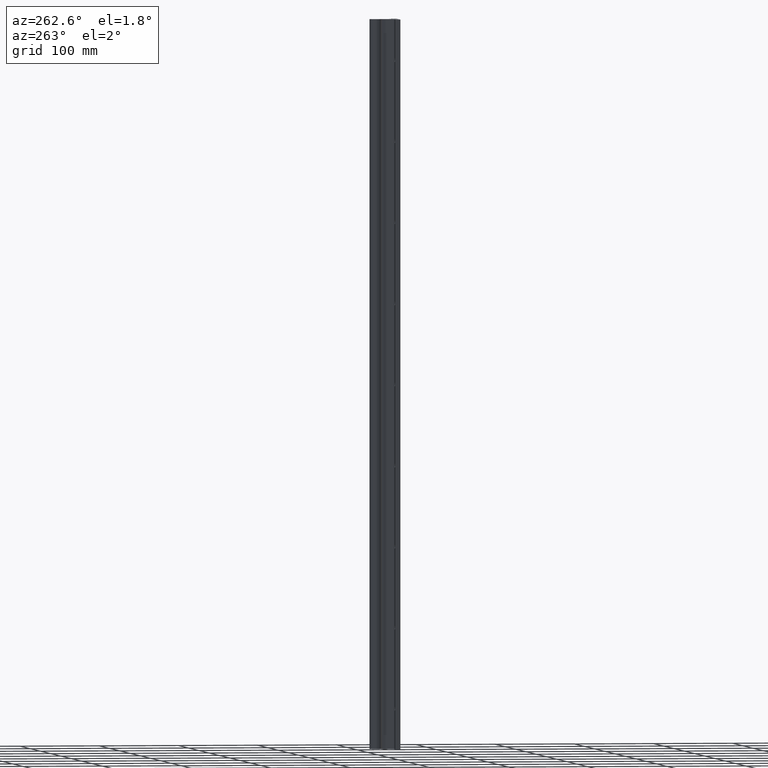
[diagram: clean part render]
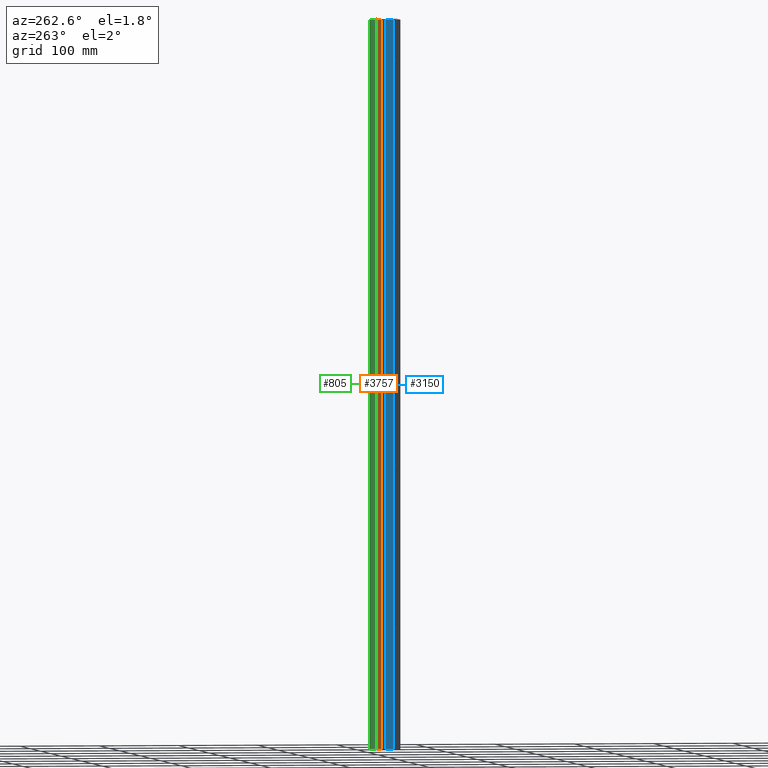
[diagram: same view with three faces highlighted in distinct colors, each labeled with its STEP entity id]
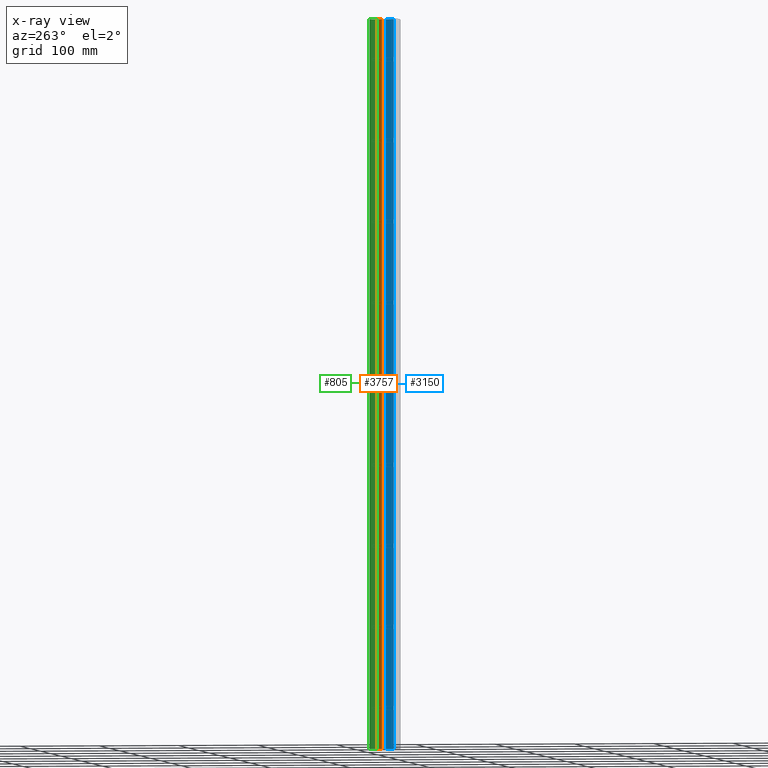
[diagram: x-ray of the same camera — body ghosted, the three highlighted faces saturated]
A machine part, auxiliary view with three faces highlighted in distinct colors.
The next image is the same camera in x-ray (body ghosted, the three faces saturated) — at least one of them is partly hidden behind the body in this view.
Their STEP definitions:

[orange] entity #3757 — the highlighted cylindrical surface (edge-blend (fillet) strip) has radius 7.9375 mm, axis along (0, 0, 1).
#4 = CARTESIAN_POINT ( 'NONE',  ( 0.006248130838341210865, 0.8125000000000001110, -26.09399999999999764 ) ) ;
#8 = LINE ( 'NONE', #9078, #9070 ) ;
#27 = CARTESIAN_POINT ( 'NONE',  ( 0.07472214623426050306, 0.8215447097984074354, -9.942643660028952723 ) ) ;
#29 = CARTESIAN_POINT ( 'NONE',  ( 0.03048761765260045095, 0.8139383901274355182, -30.08913034747329007 ) ) ;
#39 = CARTESIAN_POINT ( 'NONE',  ( -0.006158276210661196674, 0.8125000000000001110, -25.90599999999999881 ) ) ;
#82 = CARTESIAN_POINT ( 'NONE',  ( 0.08209230001453839132, 0.8234355620191010638, -30.04740475935408739 ) ) ;
#91 = CARTESIAN_POINT ( 'NONE',  ( -0.04719947330657348755, 0.8160417891568694237, -26.08152188579649433 ) ) ;
#92 = VECTOR ( 'NONE', #11593, 39.37007874015748143 ) ;
#116 = EDGE_CURVE ( 'NONE', #3796, #10595, #2881, .T. ) ;
#122 = CARTESIAN_POINT ( 'NONE',  ( -0.08205196841644332717, 0.8234238652493771626, -1.952496367178270020 ) ) ;
#144 = EDGE_LOOP ( 'NONE', ( #6284, #7890 ) ) ;
#160 = VERTEX_POINT ( 'NONE', #2288 ) ;
#162 = CARTESIAN_POINT ( 'NONE',  ( -0.01239589557352104889, 0.8126867233638430665, -25.90661540038945176 ) ) ;
#190 = CARTESIAN_POINT ( 'NONE',  ( -0.06210710162732885342, 0.8187016540781720808, -1.929173890949760217 ) ) ;
#225 = CARTESIAN_POINT ( 'NONE',  ( -0.09338228139797868921, 0.8267759215348504664, -33.98760103686330325 ) ) ;
#226 = CARTESIAN_POINT ( 'NONE',  ( 0.09337431156350305128, 0.8267734345808208651, -33.98755094901731155 ) ) ;
#266 = CARTESIAN_POINT ( 'NONE',  ( 0.01239471305407765372, 0.8126871810120629425, -10.09338298558492220 ) ) ;
#277 = CARTESIAN_POINT ( 'NONE',  ( 0.06218734984264826654, 0.8187184119934809434, -18.07075209320053943 ) ) ;
#283 = CARTESIAN_POINT ( 'NONE',  ( -0.08917577085278079185, 0.8254836531408547007, -33.96963617191656226 ) ) ;
#305 = CARTESIAN_POINT ( 'NONE',  ( -0.01239589557352061520, 0.8126867233638429555, -1.906615400389455761 ) ) ;
#382 = CARTESIAN_POINT ( 'NONE',  ( -0.03044423128482893690, 0.8139338484542095742, -6.089146305765224199 ) ) ;
#410 = CARTESIAN_POINT ( 'NONE',  ( -0.07510743548941885284, 0.8215319702436251204, -34.05782207474265277 ) ) ;
#413 = CARTESIAN_POINT ( 'NONE',  ( 0.07510757727267895756, 0.8215320241521083533, -2.057821730578281993 ) ) ;
#444 = CARTESIAN_POINT ( 'NONE',  ( -0.09400282774607462977, 0.8269736280383979121, -21.99387155281482009 ) ) ;
#460 = CARTESIAN_POINT ( 'NONE',  ( 0.09339431365803431417, 0.8267796996786785924, -18.01231412789482178 ) ) ;
#472 = CARTESIAN_POINT ( 'NONE',  ( 0.07079793436574444154, 0.8205930284507833017, -1.937860916235942144 ) ) ;
#485 = CARTESIAN_POINT ( 'NONE',  ( 0.08915249567970506828, 0.8254769057181347014, -14.03042074533693295 ) ) ;
#512 = CARTESIAN_POINT ( 'NONE',  ( 0.07510757727267776407, 0.8215320241521085753, -26.05782173057828643 ) ) ;
#513 = VERTEX_POINT ( 'NONE', #9245 ) ;
#527 = CARTESIAN_POINT ( 'NONE',  ( -4.257212019022416586E-16, 0.8125000000000001110, -18.09400000000000119 ) ) ;
#550 = VERTEX_POINT ( 'NONE', #7383 ) ;
#562 = CARTESIAN_POINT ( 'NONE',  ( -0.09400282774607474079, 0.8269736280383976901, -13.99387155281481832 ) ) ;
#571 = CARTESIAN_POINT ( 'NONE',  ( -0.02453868079496430640, 0.8134055614502641030, -21.90904839299751927 ) ) ;
#613 = CARTESIAN_POINT ( 'NONE',  ( 1.155731791863476241E-15, 0.8125000000000001110, -30.09399999999999764 ) ) ;
#624 = CARTESIAN_POINT ( 'NONE',  ( -0.08914055491288649935, 0.8254733877079193372, -14.03045288210713260 ) ) ;
#630 = CARTESIAN_POINT ( 'NONE',  ( -0.3125000000000000000, 1.125000000000000222, -36.00000000000000000 ) ) ;
#642 = EDGE_CURVE ( 'NONE', #8227, #7958, #10755, .T. ) ;
#671 = CARTESIAN_POINT ( 'NONE',  ( -0.05739900808182131497, 0.8177734638920228782, -29.92530910750287987 ) ) ;
#679 = CARTESIAN_POINT ( 'NONE',  ( 0.08440922261781183544, 0.8241055286361974597, -5.958172225124984678 ) ) ;
#689 = CARTESIAN_POINT ( 'NONE',  ( 2.215876793830488674E-15, 0.8125000000000001110, -21.90599999999999881 ) ) ;
#691 = VERTEX_POINT ( 'NONE', #630 ) ;
#697 = CARTESIAN_POINT ( 'NONE',  ( -0.006158276210661278206, 0.8125000000000000000, -17.90599999999999525 ) ) ;
#736 = CARTESIAN_POINT ( 'NONE',  ( 0.04724576803369226474, 0.8160490580171795294, -33.91850583633337379 ) ) ;
#760 = CARTESIAN_POINT ( 'NONE',  ( -0.006249812255970009500, 0.8125000000000003331, -18.09400000000000119 ) ) ;
#783 = CARTESIAN_POINT ( 'NONE',  ( 0.08150333686740514338, 0.8232953126504904962, -29.95277336607160024 ) ) ;
#794 = CARTESIAN_POINT ( 'NONE',  ( -0.03040333002857182818, 0.8139301967071821409, -29.91084125566242591 ) ) ;
#811 = CARTESIAN_POINT ( 'NONE',  ( -0.05739126467442195317, 0.8177717313350272299, -10.07469839946950252 ) ) ;
#819 = CARTESIAN_POINT ( 'NONE',  ( 0.04182498381696703876, 0.8152589941655239425, -22.08440606849956112 ) ) ;
#821 = CARTESIAN_POINT ( 'NONE',  ( 0.09337431156350299577, 0.8267734345808211982, -1.987550949017310220 ) ) ;
#833 = CARTESIAN_POINT ( 'NONE',  ( 0.02474633499646794466, 0.8132725173552960429, -9.908489208672186521 ) ) ;
#854 = CARTESIAN_POINT ( 'NONE',  ( 0.03048761765259761294, 0.8139383901274357402, -6.089130347473298066 ) ) ;
#860 = CARTESIAN_POINT ( 'NONE',  ( 2.215876793912977492E-15, 0.8125000000000001110, -9.906000000000000583 ) ) ;
#868 = CARTESIAN_POINT ( 'NONE',  ( 0.04174469723951328842, 0.8152482140724262027, -21.91555456342299379 ) ) ;
#901 = CARTESIAN_POINT ( 'NONE',  ( 0.04720408787751083357, 0.8160425046014818662, -34.08151917292410360 ) ) ;
#924 = CARTESIAN_POINT ( 'NONE',  ( -0.05739900808182017700, 0.8177734638920224342, -9.925309107502876316 ) ) ;
#926 = CARTESIAN_POINT ( 'NONE',  ( -0.006249812255970032919, 0.8125000000000000000, -2.093999999999999861 ) ) ;
#932 = CARTESIAN_POINT ( 'NONE',  ( 0.04720408787751083357, 0.8160425046014818662, -22.08151917292410360 ) ) ;
#963 = CARTESIAN_POINT ( 'NONE',  ( -0.06210710162732863138, 0.8187016540781717477, -25.92917389094974823 ) ) ;
#989 = CARTESIAN_POINT ( 'NONE',  ( 0.09098059252350407244, 0.8260344883912750236, -22.02442677534054027 ) ) ;
#1006 = CARTESIAN_POINT ( 'NONE',  ( 0.02448571958776133567, 0.8134019009169753955, -30.09096406128089640 ) ) ;
#1017 = CARTESIAN_POINT ( 'NONE',  ( 0.09339431365803428642, 0.8267796996786785924, -34.01231412789481112 ) ) ;
#1035 = CARTESIAN_POINT ( 'NONE',  ( -0.05739900808182005210, 0.8177734638920225452, -1.925309107502876316 ) ) ;
#1069 = CARTESIAN_POINT ( 'NONE',  ( 0.08209230001453840520, 0.8234355620191015079, -34.04740475935409449 ) ) ;
#1114 = CARTESIAN_POINT ( 'NONE',  ( 1.155731791863476241E-15, 0.8125000000000001110, -22.09400000000000119 ) ) ;
#1127 = CARTESIAN_POINT ( 'NONE',  ( 0.05741460662030947043, 0.8177762865666113878, -17.92532052319779723 ) ) ;
#1168 = CARTESIAN_POINT ( 'NONE',  ( -0.03040333002857211614, 0.8139301967071816968, -5.910841255662426796 ) ) ;
#1181 = CARTESIAN_POINT ( 'NONE',  ( 0.006248130838341072087, 0.8124999999999997780, -10.09399999999999764 ) ) ;
#1191 = ORIENTED_EDGE ( 'NONE', *, *, #2956, .T. ) ;
#1192 = CARTESIAN_POINT ( 'NONE',  ( 1.155731791863476241E-15, 0.8125000000000001110, -34.09400000000000119 ) ) ;
#1211 = CARTESIAN_POINT ( 'NONE',  ( 2.215876793892106993E-15, 0.8125000000000001110, -1.906000000000000139 ) ) ;
#1226 = CARTESIAN_POINT ( 'NONE',  ( -0.04719947330657348755, 0.8160417891568694237, -22.08152188579649788 ) ) ;
#1273 = CIRCLE ( 'NONE', #4004, 0.3125000000000000000 ) ;
#1283 = CARTESIAN_POINT ( 'NONE',  ( -0.02445328354005019481, 0.8133996061316390858, -6.090971874260892704 ) ) ;
#1288 = CARTESIAN_POINT ( 'NONE',  ( -0.09338228139797868921, 0.8267759215348504664, -21.98760103686331036 ) ) ;
#1305 = CARTESIAN_POINT ( 'NONE',  ( 0.03048761765259833459, 0.8139383901274355182, -18.08913034747329718 ) ) ;
#1348 = CARTESIAN_POINT ( 'NONE',  ( -0.04719947330657314755, 0.8160417891568693127, -6.081521885796496107 ) ) ;
#1353 = CARTESIAN_POINT ( 'NONE',  ( -0.03044423128482861771, 0.8139338484542094632, -22.08914630576521532 ) ) ;
#1354 = CARTESIAN_POINT ( 'NONE',  ( 0.02448571958776136342, 0.8134019009169756176, -26.09096406128089995 ) ) ;
#1377 = CARTESIAN_POINT ( 'NONE',  ( -7.821433921097287355E-18, 0.8125000000000001110, -2.093999999999999861 ) ) ;
#1391 = CARTESIAN_POINT ( 'NONE',  ( 0.06218734984264826654, 0.8187184119934809434, -14.07075209320054299 ) ) ;
#1402 = CARTESIAN_POINT ( 'NONE',  ( 1.155731791863476241E-15, 0.8125000000000001110, -26.09399999999999764 ) ) ;
#1405 = CARTESIAN_POINT ( 'NONE',  ( -0.09400282774607451874, 0.8269736280383975791, -5.993871552814813874 ) ) ;
#1409 = CARTESIAN_POINT ( 'NONE',  ( 0.08915249567970499889, 0.8254769057181345904, -26.03042074533692229 ) ) ;
#1482 = CARTESIAN_POINT ( 'NONE',  ( -0.02445328354005038562, 0.8133996061316387527, -18.09097187426089803 ) ) ;
#1493 = CARTESIAN_POINT ( 'NONE',  ( 1.155731791863476241E-15, 0.8125000000000001110, -34.09400000000000119 ) ) ;
#1510 = VERTEX_POINT ( 'NONE', #9863 ) ;
#1516 = CARTESIAN_POINT ( 'NONE',  ( 0.09339431365803431417, 0.8267796996786785924, -14.01231412789482178 ) ) ;
#1536 = CARTESIAN_POINT ( 'NONE',  ( 0.02474633499646775037, 0.8132725173552959319, -25.90848920867217942 ) ) ;
#1543 = CARTESIAN_POINT ( 'NONE',  ( -0.03040333002857163389, 0.8139301967071820298, -17.91084125566243301 ) ) ;
#1552 = FACE_BOUND ( 'NONE', #11528, .T. ) ;
#1572 = CARTESIAN_POINT ( 'NONE',  ( 0.07079793436574355336, 0.8205930284507831907, -33.93786091623594103 ) ) ;
#1574 = CARTESIAN_POINT ( 'NONE',  ( 0.09337431156350287087, 0.8267734345808207541, -13.98755094901731155 ) ) ;
#1579 = CARTESIAN_POINT ( 'NONE',  ( 0.08209230001453882153, 0.8234355620191012859, -6.047404759354088277 ) ) ;
#1597 = CARTESIAN_POINT ( 'NONE',  ( -0.09338228139797870309, 0.8267759215348504664, -17.98760103686330680 ) ) ;
#1627 = CARTESIAN_POINT ( 'NONE',  ( -0.07510743548941881120, 0.8215319702436251204, -30.05782207474263856 ) ) ;
#1641 = CARTESIAN_POINT ( 'NONE',  ( -0.006249812255970005163, 0.8125000000000000000, -10.09399999999999942 ) ) ;
#1650 = CARTESIAN_POINT ( 'NONE',  ( 0.04724576803369226474, 0.8160490580171795294, -21.91850583633337735 ) ) ;
#1655 = CARTESIAN_POINT ( 'NONE',  ( 0.09098059252350362835, 0.8260344883912750236, -2.024426775340546047 ) ) ;
#1669 = VERTEX_POINT ( 'NONE', #7575 ) ;
#1693 = CARTESIAN_POINT ( 'NONE',  ( -0.06210710162732862444, 0.8187016540781719698, -29.92917389094976244 ) ) ;
#1701 = CARTESIAN_POINT ( 'NONE',  ( 0.07510757727267905470, 0.8215320241521085753, -6.057821730578282882 ) ) ;
#1707 = CARTESIAN_POINT ( 'NONE',  ( -0.04724092479732570210, 0.8160484089020147991, -9.918503554831589852 ) ) ;
#1709 = CARTESIAN_POINT ( 'NONE',  ( 0.01239471305407907446, 0.8126871810120629425, -26.09338298558492042 ) ) ;
#1748 = CARTESIAN_POINT ( 'NONE',  ( -0.09096485890362770999, 0.8260296701930360808, -30.02449047951755290 ) ) ;
#1754 = CARTESIAN_POINT ( 'NONE',  ( 0.09337431156350305128, 0.8267734345808209762, -5.987550949017310664 ) ) ;
#1755 = CARTESIAN_POINT ( 'NONE',  ( -0.02453868079496409824, 0.8134055614502638809, -13.90904839299751927 ) ) ;
#1765 = CARTESIAN_POINT ( 'NONE',  ( -0.03044423128482857260, 0.8139338484542096852, -2.089146305765224199 ) ) ;
#1785 = CARTESIAN_POINT ( 'NONE',  ( 0.08440922261781283464, 0.8241055286361979038, -9.958172225124990007 ) ) ;
#1808 = CARTESIAN_POINT ( 'NONE',  ( 0.04720408787751085439, 0.8160425046014821993, -6.081519172924102712 ) ) ;
#1823 = VERTEX_POINT ( 'NONE', #2142 ) ;
#1851 = CARTESIAN_POINT ( 'NONE',  ( 0.09339431365803428642, 0.8267796996786788144, -30.01231412789480757 ) ) ;
#1881 = CARTESIAN_POINT ( 'NONE',  ( -0.01239589557352049551, 0.8126867233638429555, -13.90661540038945354 ) ) ;
#1892 = EDGE_LOOP ( 'NONE', ( #4302, #2176 ) ) ;
#1896 = CARTESIAN_POINT ( 'NONE',  ( 0.06218734984264721877, 0.8187184119934810544, -22.07075209320053588 ) ) ;
#1925 = CARTESIAN_POINT ( 'NONE',  ( 0.09095975716276057110, 0.8260281468790585668, -33.97550380627078681 ) ) ;
#1940 = B_SPLINE_CURVE_WITH_KNOTS ( 'NONE', 3,
 ( #11116, #926, #5432, #9184, #1765, #4503, #4622, #5486, #8369, #11170, #2789, #8137, #10939, #9410, #11416, #4684, #5669, #8615, #6579, #122, #10381, #190, #1035, #2915, #8423, #3830, #9532, #305, #9590, #1211 ),
 .UNSPECIFIED., .F., .F.,
 ( 4, 2, 2, 2, 2, 2, 2, 2, 2, 2, 2, 2, 2, 2, 4 ),
 ( 1.929021670518176614E-19, 0.0004692782729840796791, 0.0009385565459681591413, 0.001407834818952238658, 0.001877113091936318066, 0.002815669637904463438, 0.003284947910888545881, 0.003754226183872628325, 0.004223504456856709902, 0.004692782729840792345, 0.005631339275808973713, 0.006100617548793064830, 0.006569895821777155948, 0.007039174094761247065, 0.007508452367745338182 ),
 .UNSPECIFIED. ) ;
#1957 = CARTESIAN_POINT ( 'NONE',  ( 0.3125000000000000000, 1.125000000000000222, -36.00000000000000000 ) ) ;
#1983 = CARTESIAN_POINT ( 'NONE',  ( -0.08917577085278079185, 0.8254836531408547007, -25.96963617191656226 ) ) ;
#2035 = CARTESIAN_POINT ( 'NONE',  ( 1.155731791863476241E-15, 0.8125000000000001110, -30.09399999999999764 ) ) ;
#2080 = B_SPLINE_CURVE_WITH_KNOTS ( 'NONE', 3,
 ( #9913, #11676, #1536, #3293, #7024, #2383, #8814, #10703, #10766, #5193, #6051, #6108, #6174, #8943, #3350, #9788, #7828, #3166, #1409, #6896, #512, #7080, #4207, #2265, #5989, #9730, #1354, #1709, #4, #10087 ),
 .UNSPECIFIED., .F., .F.,
 ( 4, 2, 2, 2, 2, 2, 2, 2, 2, 2, 2, 2, 2, 2, 4 ),
 ( 0.007508452367745374612, 0.008446756409245116670, 0.008915908429994925249, 0.009385060450744733829, 0.009854212471494542408, 0.01032336449224434925, 0.01079251651299415783, 0.01126166853374396468, 0.01173082055449377326, 0.01219997257524358183, 0.01313827661674319552, 0.01360742863749300410, 0.01407658065824281268, 0.01454573267899261953, 0.01501488469974242637 ),
 .UNSPECIFIED. ) ;
#2082 = CARTESIAN_POINT ( 'NONE',  ( -0.08209296015616006359, 0.8234358842663974665, -6.047396330322444058 ) ) ;
#2093 = CARTESIAN_POINT ( 'NONE',  ( 0.02448571958775990626, 0.8134019009169753955, -10.09096406128090706 ) ) ;
#2100 = CARTESIAN_POINT ( 'NONE',  ( -4.257212019022416586E-16, 0.8125000000000001110, -18.09400000000000119 ) ) ;
#2106 = CARTESIAN_POINT ( 'NONE',  ( -0.006249812255970137870, 0.8125000000000000000, -34.09399999999999409 ) ) ;
#2142 = CARTESIAN_POINT ( 'NONE',  ( -4.257212019022416586E-16, 0.8125000000000001110, -14.09399999999999942 ) ) ;
#2144 = CARTESIAN_POINT ( 'NONE',  ( -0.02445328354005111074, 0.8133996061316390858, -22.09097187426088738 ) ) ;
#2151 = CARTESIAN_POINT ( 'NONE',  ( 0.04182498381696517914, 0.8152589941655236094, -10.08440606849955934 ) ) ;
#2157 = CARTESIAN_POINT ( 'NONE',  ( 0.08150333686740436623, 0.8232953126504897190, -17.95277336607160024 ) ) ;
#2164 = CARTESIAN_POINT ( 'NONE',  ( -0.09399715238152349384, 0.8269718379867130320, -34.00621488803795245 ) ) ;
#2176 = ORIENTED_EDGE ( 'NONE', *, *, #11452, .T. ) ;
#2198 = EDGE_CURVE ( 'NONE', #9072, #6800, #2080, .T. ) ;
#2200 = CARTESIAN_POINT ( 'NONE',  ( -0.09339241607760469244, 0.8267790747123382467, -22.01233879092717771 ) ) ;
#2262 = CARTESIAN_POINT ( 'NONE',  ( -0.01238818596634619698, 0.8126871738412412283, -22.09338296327967299 ) ) ;
#2265 = CARTESIAN_POINT ( 'NONE',  ( 0.04720408787751083357, 0.8160425046014818662, -26.08151917292410005 ) ) ;
#2276 = AXIS2_PLACEMENT_3D ( 'NONE', #7160, #11690, #8209 ) ;
#2288 = CARTESIAN_POINT ( 'NONE',  ( 2.215876793912977492E-15, 0.8125000000000001110, -17.90600000000000236 ) ) ;
#2312 = CARTESIAN_POINT ( 'NONE',  ( -0.08205196841644379901, 0.8234238652493771626, -13.95249636717826824 ) ) ;
#2347 = CARTESIAN_POINT ( 'NONE',  ( -0.09339241607760469244, 0.8267790747123382467, -34.01233879092716705 ) ) ;
#2354 = EDGE_CURVE ( 'NONE', #550, #513, #1940, .T. ) ;
#2373 = CARTESIAN_POINT ( 'NONE',  ( 2.215876793912977492E-15, 0.8125000000000001110, -9.906000000000000583 ) ) ;
#2383 = CARTESIAN_POINT ( 'NONE',  ( 0.05741460662031107332, 0.8177762865666121650, -25.92532052319780078 ) ) ;
#2403 = EDGE_LOOP ( 'NONE', ( #2825, #9519 ) ) ;
#2422 = CARTESIAN_POINT ( 'NONE',  ( 0.08917384013475687654, 0.8254830121748242266, -13.96962721860679757 ) ) ;
#2433 = CARTESIAN_POINT ( 'NONE',  ( -0.03044423128482971058, 0.8139338484542099073, -14.08914630576522065 ) ) ;
#2447 = CARTESIAN_POINT ( 'NONE',  ( -0.05739900808182127334, 0.8177734638920226562, -21.92530910750287276 ) ) ;
#2455 = CARTESIAN_POINT ( 'NONE',  ( -0.06210710162732847872, 0.8187016540781717477, -17.92917389094976244 ) ) ;
#2487 = CARTESIAN_POINT ( 'NONE',  ( 0.02474633499646775037, 0.8132725173552959319, -33.90848920867218652 ) ) ;
#2490 = CARTESIAN_POINT ( 'NONE',  ( 0.08209230001453839132, 0.8234355620191012859, -14.04740475935409094 ) ) ;
#2494 = CARTESIAN_POINT ( 'NONE',  ( 0.09095975716276094580, 0.8260281468790590109, -5.975503806270784146 ) ) ;
#2549 = EDGE_CURVE ( 'NONE', #7958, #8227, #5722, .T. ) ;
#2557 = CARTESIAN_POINT ( 'NONE',  ( 2.215876793912977492E-15, 0.8125000000000001110, -5.905999999999999694 ) ) ;
#2560 = CARTESIAN_POINT ( 'NONE',  ( -0.02445328354005038909, 0.8133996061316387527, -10.09097187426089448 ) ) ;
#2567 = CARTESIAN_POINT ( 'NONE',  ( 0.05739462601868262209, 0.8177723697655944202, -22.07469577210762068 ) ) ;
#2568 = CARTESIAN_POINT ( 'NONE',  ( -0.08917577085278151350, 0.8254836531408547007, -17.96963617191655871 ) ) ;
#2570 = CARTESIAN_POINT ( 'NONE',  ( 0.08209230001453884928, 0.8234355620191012859, -2.047404759354089165 ) ) ;
#2589 = CARTESIAN_POINT ( 'NONE',  ( 0.09399955230915862936, 0.8269725949415089872, -29.99379768543072444 ) ) ;
#2598 = CARTESIAN_POINT ( 'NONE',  ( -0.09400282774607457426, 0.8269736280383976901, -29.99387155281480588 ) ) ;
#2603 = CARTESIAN_POINT ( 'NONE',  ( 0.04174469723951370476, 0.8152482140724257587, -5.915554563422990242 ) ) ;
#2657 = CARTESIAN_POINT ( 'NONE',  ( -0.02445328354005111074, 0.8133996061316390858, -30.09097187426089093 ) ) ;
#2664 = CARTESIAN_POINT ( 'NONE',  ( 0.02474633499646802445, 0.8132725173552958209, -5.908489208672183857 ) ) ;
#2697 = CARTESIAN_POINT ( 'NONE',  ( 0.06212367018058469192, 0.8187050417628198851, -9.929188540159186616 ) ) ;
#2737 = CARTESIAN_POINT ( 'NONE',  ( 0.02474633499646775037, 0.8132725173552959319, -21.90848920867218297 ) ) ;
#2766 = CARTESIAN_POINT ( 'NONE',  ( 0.07510757727267776407, 0.8215320241521085753, -34.05782173057828999 ) ) ;
#2789 = CARTESIAN_POINT ( 'NONE',  ( -0.08209296015615998032, 0.8234358842663971334, -2.047396330322444058 ) ) ;
#2796 = CARTESIAN_POINT ( 'NONE',  ( 0.08150333686740519890, 0.8232953126504903851, -21.95277336607159668 ) ) ;
#2825 = ORIENTED_EDGE ( 'NONE', *, *, #2354, .T. ) ;
#2830 = CARTESIAN_POINT ( 'NONE',  ( 0.02448571958776136342, 0.8134019009169756176, -34.09096406128090706 ) ) ;
#2881 = B_SPLINE_CURVE_WITH_KNOTS ( 'NONE', 3,
 ( #1192, #2106, #6920, #10543, #10663, #10728, #9691, #7790, #5026, #410, #3073, #6803, #6984, #2347, #2164, #11459, #225, #8835, #283, #5833, #3257, #8777, #3918, #10596, #7847, #6070, #11574, #11393, #3008, #4905 ),
 .UNSPECIFIED., .F., .F.,
 ( 4, 2, 2, 2, 2, 2, 2, 2, 2, 2, 2, 2, 2, 2, 4 ),
 ( 2.850412973250058575E-17, 0.0004692782729841405570, 0.0009385565459682528163, 0.001407834818952365076, 0.001877113091936477443, 0.002815669637904701962, 0.003284947910888813896, 0.003754226183872925830, 0.004223504456857038632, 0.004692782729841149698, 0.005631339275809070857, 0.006100617548793146362, 0.006569895821777222734, 0.007039174094761299107, 0.007508452367745374612 ),
 .UNSPECIFIED. ) ;
#2889 = VERTEX_POINT ( 'NONE', #4120 ) ;
#2893 = CARTESIAN_POINT ( 'NONE',  ( -0.09400282774607462977, 0.8269736280383979121, -25.99387155281482364 ) ) ;
#2915 = CARTESIAN_POINT ( 'NONE',  ( -0.04724092479732549393, 0.8160484089020144660, -1.918503554831592073 ) ) ;
#2924 = EDGE_CURVE ( 'NONE', #4660, #11147, #10094, .T. ) ;
#2929 = CARTESIAN_POINT ( 'NONE',  ( -0.08205196841644256389, 0.8234238652493768296, -21.95249636717827002 ) ) ;
#2956 = EDGE_CURVE ( 'NONE', #10595, #3796, #9525, .T. ) ;
#2957 = EDGE_CURVE ( 'NONE', #6800, #9072, #4544, .T. ) ;
#3001 = CARTESIAN_POINT ( 'NONE',  ( 0.006248130838341072087, 0.8125000000000001110, -18.09399999999999409 ) ) ;
#3008 = CARTESIAN_POINT ( 'NONE',  ( -0.006158276210661196674, 0.8125000000000001110, -33.90600000000000591 ) ) ;
#3009 = CARTESIAN_POINT ( 'NONE',  ( -0.006249812255970137870, 0.8125000000000000000, -26.09399999999999409 ) ) ;
#3024 = ORIENTED_EDGE ( 'NONE', *, *, #116, .T. ) ;
#3073 = CARTESIAN_POINT ( 'NONE',  ( -0.08209296015616042441, 0.8234358842663971334, -34.04739633032244228 ) ) ;
#3122 = CARTESIAN_POINT ( 'NONE',  ( 2.215876793912977492E-15, 0.8125000000000001110, -17.90600000000000236 ) ) ;
#3160 = CARTESIAN_POINT ( 'NONE',  ( -0.05739126467442233481, 0.8177717313350272299, -6.074698399469501631 ) ) ;
#3166 = CARTESIAN_POINT ( 'NONE',  ( 0.09098059252350407244, 0.8260344883912750236, -26.02442677534052962 ) ) ;
#3223 = CARTESIAN_POINT ( 'NONE',  ( -0.08917577085278127758, 0.8254836531408548117, -5.969636171916558709 ) ) ;
#3243 = EDGE_CURVE ( 'NONE', #691, #2889, #8, .T. ) ;
#3250 = CARTESIAN_POINT ( 'NONE',  ( 0.04720408787751131929, 0.8160425046014819772, -18.08151917292410005 ) ) ;
#3257 = CARTESIAN_POINT ( 'NONE',  ( -0.07512422930621720507, 0.8215342271043934996, -33.94218244769862025 ) ) ;
#3259 = CARTESIAN_POINT ( 'NONE',  ( 0.08440922261781209912, 0.8241055286361979038, -1.958172225124986676 ) ) ;
#3292 = CARTESIAN_POINT ( 'NONE',  ( -0.03040333002857184552, 0.8139301967071815858, -21.91084125566242591 ) ) ;
#3293 = CARTESIAN_POINT ( 'NONE',  ( 0.04174469723951328842, 0.8152482140724262027, -25.91555456342298669 ) ) ;
#3334 = CARTESIAN_POINT ( 'NONE',  ( 0.05739462601868321884, 0.8177723697655945312, -14.07469577210761891 ) ) ;
#3340 = CARTESIAN_POINT ( 'NONE',  ( -0.08917577085278151350, 0.8254836531408547007, -13.96963617191655871 ) ) ;
#3350 = CARTESIAN_POINT ( 'NONE',  ( 0.09399955230915864324, 0.8269725949415090982, -25.99379768543071734 ) ) ;
#3357 = CARTESIAN_POINT ( 'NONE',  ( -0.08205196841644379901, 0.8234238652493771626, -17.95249636717827002 ) ) ;
#3385 = CARTESIAN_POINT ( 'NONE',  ( 0.01231323883885318722, 0.8125000000000003331, -33.90599999999999881 ) ) ;
#3387 = CARTESIAN_POINT ( 'NONE',  ( 0.02448571958775989932, 0.8134019009169755066, -14.09096406128090351 ) ) ;
#3417 = CARTESIAN_POINT ( 'NONE',  ( -0.09339241607760476183, 0.8267790747123383577, -18.01233879092718837 ) ) ;
#3452 = CARTESIAN_POINT ( 'NONE',  ( 0.09399955230915850446, 0.8269725949415090982, -13.99379768543072267 ) ) ;
#3467 = CARTESIAN_POINT ( 'NONE',  ( -0.08205196841644381289, 0.8234238652493772737, -9.952496367178266468 ) ) ;
#3479 = CARTESIAN_POINT ( 'NONE',  ( 0.09095975716276057110, 0.8260281468790585668, -21.97550380627077971 ) ) ;
#3487 = FACE_BOUND ( 'NONE', #2403, .T. ) ;
#3508 = CARTESIAN_POINT ( 'NONE',  ( -0.04181332792459496045, 0.8152571268553499007, -30.08441303606660000 ) ) ;
#3522 = CARTESIAN_POINT ( 'NONE',  ( -0.07512422930621714956, 0.8215342271043934996, -9.942182447698620251 ) ) ;
#3577 = CARTESIAN_POINT ( 'NONE',  ( -0.02453868079496406701, 0.8134055614502634368, -9.909048392997513943 ) ) ;
#3590 = CARTESIAN_POINT ( 'NONE',  ( 0.09095975716276082090, 0.8260281468790587889, -1.975503806270783924 ) ) ;
#3606 = CARTESIAN_POINT ( 'NONE',  ( 0.04724576803369043287, 0.8160490580171789743, -9.918505836333377346 ) ) ;
#3614 = CARTESIAN_POINT ( 'NONE',  ( 0.02474633499646775384, 0.8132725173552961540, -29.90848920867218652 ) ) ;
#3625 = CARTESIAN_POINT ( 'NONE',  ( -0.006249812255970137870, 0.8125000000000000000, -30.09399999999999054 ) ) ;
#3633 = CARTESIAN_POINT ( 'NONE',  ( 2.215876793912977492E-15, 0.8125000000000001110, -5.905999999999999694 ) ) ;
#3641 = CARTESIAN_POINT ( 'NONE',  ( -0.09096390808720990206, 0.8260294013101279198, -9.975514245131954283 ) ) ;
#3685 = CARTESIAN_POINT ( 'NONE',  ( 2.215876793830488674E-15, 0.8125000000000001110, -25.90599999999999525 ) ) ;
#3723 = CARTESIAN_POINT ( 'NONE',  ( 0.08150333686740436623, 0.8232953126504898300, -9.952773366071600236 ) ) ;
#3727 = CARTESIAN_POINT ( 'NONE',  ( 0.01239471305407908487, 0.8126871810120628314, -30.09338298558492042 ) ) ;
#3757 = ADVANCED_FACE ( 'NONE', ( #10035, #3487, #9865, #9925, #4224, #9803, #6063, #4463, #1552, #5266 ), #5141, .T. ) ;
#3796 = VERTEX_POINT ( 'NONE', #1493 ) ;
#3804 = CARTESIAN_POINT ( 'NONE',  ( -0.09096485890362772386, 0.8260296701930363028, -26.02449047951755645 ) ) ;
#3830 = CARTESIAN_POINT ( 'NONE',  ( -0.03040333002857200512, 0.8139301967071816968, -1.910841255662426130 ) ) ;
#3853 = CARTESIAN_POINT ( 'NONE',  ( 0.04720408787751131235, 0.8160425046014817552, -10.08151917292409827 ) ) ;
#3899 = CARTESIAN_POINT ( 'NONE',  ( -0.07512422930621720507, 0.8215342271043934996, -21.94218244769862025 ) ) ;
#3912 = CARTESIAN_POINT ( 'NONE',  ( 0.04724576803369043981, 0.8160490580171793074, -17.91850583633337735 ) ) ;
#3918 = CARTESIAN_POINT ( 'NONE',  ( -0.05739900808182127334, 0.8177734638920226562, -33.92530910750287632 ) ) ;
#3919 = CARTESIAN_POINT ( 'NONE',  ( 0.03048761765260044748, 0.8139383901274359623, -34.08913034747330073 ) ) ;
#3953 = CARTESIAN_POINT ( 'NONE',  ( -0.01239589557352083378, 0.8126867233638429555, -5.906615400389455317 ) ) ;
#3962 = ORIENTED_EDGE ( 'NONE', *, *, #2198, .T. ) ;
#4004 = AXIS2_PLACEMENT_3D ( 'NONE', #5078, #8954, #7091 ) ;
#4033 = CARTESIAN_POINT ( 'NONE',  ( 0.09339431365803430030, 0.8267796996786785924, -10.01231412789482000 ) ) ;
#4110 = CARTESIAN_POINT ( 'NONE',  ( 0.01239471305407812904, 0.8126871810120628314, -2.093382985584921752 ) ) ;
#4120 = CARTESIAN_POINT ( 'NONE',  ( -0.3125000000000000000, 1.125000000000000222, 0.000000000000000000 ) ) ;
#4123 = EDGE_CURVE ( 'NONE', #6028, #8542, #8686, .T. ) ;
#4139 = CARTESIAN_POINT ( 'NONE',  ( -0.09339241607760496999, 0.8267790747123384687, -6.012338790927183041 ) ) ;
#4144 = CARTESIAN_POINT ( 'NONE',  ( -0.09096390808720987431, 0.8260294013101276978, -21.97551424513195428 ) ) ;
#4182 = CARTESIAN_POINT ( 'NONE',  ( 0.03048761765259833459, 0.8139383901274355182, -14.08913034747330073 ) ) ;
#4193 = CARTESIAN_POINT ( 'NONE',  ( -0.06210710162732847872, 0.8187016540781717477, -13.92917389094975533 ) ) ;
#4199 = CARTESIAN_POINT ( 'NONE',  ( -0.04724092479732529964, 0.8160484089020147991, -5.918503554831591629 ) ) ;
#4207 = CARTESIAN_POINT ( 'NONE',  ( 0.05739462601868262209, 0.8177723697655944202, -26.07469577210761358 ) ) ;
#4224 = FACE_BOUND ( 'NONE', #4357, .T. ) ;
#4239 = ORIENTED_EDGE ( 'NONE', *, *, #5863, .T. ) ;
#4245 = ORIENTED_EDGE ( 'NONE', *, *, #9599, .T. ) ;
#4278 = CARTESIAN_POINT ( 'NONE',  ( -0.03044423128482971058, 0.8139338484542099073, -18.08914630576522597 ) ) ;
#4302 = ORIENTED_EDGE ( 'NONE', *, *, #11067, .T. ) ;
#4305 = CARTESIAN_POINT ( 'NONE',  ( 0.04174469723951347577, 0.8152482140724258697, -13.91555456342299202 ) ) ;
#4330 = CARTESIAN_POINT ( 'NONE',  ( 2.215876793912977492E-15, 0.8125000000000001110, -17.90600000000000236 ) ) ;
#4357 = EDGE_LOOP ( 'NONE', ( #4239, #9807 ) ) ;
#4361 = CARTESIAN_POINT ( 'NONE',  ( -0.06218625147563156680, 0.8187181843221624788, -30.07075309128048346 ) ) ;
#4364 = CARTESIAN_POINT ( 'NONE',  ( 0.02474633499646793425, 0.8132725173552960429, -13.90848920867218297 ) ) ;
#4372 = CARTESIAN_POINT ( 'NONE',  ( 0.006248130838341064280, 0.8125000000000001110, -6.093999999999997641 ) ) ;
#4382 = CARTESIAN_POINT ( 'NONE',  ( -0.01238818596634554473, 0.8126871738412412283, -10.09338296327967299 ) ) ;
#4427 = CARTESIAN_POINT ( 'NONE',  ( 0.07472214623426165492, 0.8215447097984075464, -33.94264366002895628 ) ) ;
#4434 = CARTESIAN_POINT ( 'NONE',  ( 0.04724576803369105737, 0.8160490580171793074, -5.918505836333378234 ) ) ;
#4463 = FACE_BOUND ( 'NONE', #9926, .T. ) ;
#4503 = CARTESIAN_POINT ( 'NONE',  ( -0.04181332792459502290, 0.8152571268553495676, -2.084413036066601332 ) ) ;
#4513 = CARTESIAN_POINT ( 'NONE',  ( 0.09399955230915847670, 0.8269725949415089872, -1.993797685430720890 ) ) ;
#4539 = ORIENTED_EDGE ( 'NONE', *, *, #2957, .T. ) ;
#4544 = B_SPLINE_CURVE_WITH_KNOTS ( 'NONE', 3,
 ( #6678, #3009, #10363, #9337, #7606, #11274, #91, #5523, #7666, #4665, #8459, #11394, #3804, #4607, #10482, #2893, #6623, #8598, #1983, #8347, #5707, #963, #12076, #8406, #4785, #10239, #8535, #162, #39, #3685 ),
 .UNSPECIFIED., .F., .F.,
 ( 4, 2, 2, 2, 2, 2, 2, 2, 2, 2, 2, 2, 2, 2, 4 ),
 ( 2.850412973250058575E-17, 0.0004692782729841405570, 0.0009385565459682528163, 0.001407834818952365076, 0.001877113091936477443, 0.002815669637904701962, 0.003284947910888813896, 0.003754226183872925830, 0.004223504456857038632, 0.004692782729841149698, 0.005631339275809070857, 0.006100617548793146362, 0.006569895821777222734, 0.007039174094761299107, 0.007508452367745374612 ),
 .UNSPECIFIED. ) ;
#4549 = CARTESIAN_POINT ( 'NONE',  ( 2.215876793912977492E-15, 0.8125000000000001110, -13.90599999999999881 ) ) ;
#4565 = CARTESIAN_POINT ( 'NONE',  ( 0.08440922261781097502, 0.8241055286361976817, -21.95817222512499356 ) ) ;
#4607 = CARTESIAN_POINT ( 'NONE',  ( -0.09339241607760469244, 0.8267790747123382467, -26.01233879092717061 ) ) ;
#4622 = CARTESIAN_POINT ( 'NONE',  ( -0.04719947330657286305, 0.8160417891568694237, -2.081521885796496996 ) ) ;
#4629 = CARTESIAN_POINT ( 'NONE',  ( 0.03048761765260044748, 0.8139383901274359623, -22.08913034747331139 ) ) ;
#4654 = CARTESIAN_POINT ( 'NONE',  ( 0.05739462601868262209, 0.8177723697655944202, -30.07469577210761003 ) ) ;
#4660 = VERTEX_POINT ( 'NONE', #2035 ) ;
#4665 = CARTESIAN_POINT ( 'NONE',  ( -0.07510743548941885284, 0.8215319702436251204, -26.05782207474265277 ) ) ;
#4684 = CARTESIAN_POINT ( 'NONE',  ( -0.09400282774607456038, 0.8269736280383976901, -1.993871552814815873 ) ) ;
#4690 = CARTESIAN_POINT ( 'NONE',  ( 0.09339431365803428642, 0.8267796996786785924, -22.01231412789481467 ) ) ;
#4719 = CARTESIAN_POINT ( 'NONE',  ( 0.05739462601868262209, 0.8177723697655944202, -34.07469577210761713 ) ) ;
#4785 = CARTESIAN_POINT ( 'NONE',  ( -0.04173497841402667996, 0.8152469103071940948, -25.91554980316506018 ) ) ;
#4822 = CARTESIAN_POINT ( 'NONE',  ( -0.08209296015616042441, 0.8234358842663971334, -22.04739633032244583 ) ) ;
#4831 = CARTESIAN_POINT ( 'NONE',  ( 0.09399955230915850446, 0.8269725949415090982, -9.993797685430726219 ) ) ;
#4848 = CARTESIAN_POINT ( 'NONE',  ( 0.08917384013475533611, 0.8254830121748241156, -33.96962721860680290 ) ) ;
#4899 = CARTESIAN_POINT ( 'NONE',  ( 0.01231323883885338324, 0.8125000000000000000, -17.90599999999999525 ) ) ;
#4905 = CARTESIAN_POINT ( 'NONE',  ( 2.215876793830488674E-15, 0.8125000000000001110, -33.90599999999999881 ) ) ;
#4939 = CARTESIAN_POINT ( 'NONE',  ( -0.06218625147563157374, 0.8187181843221627009, -22.07075309128048701 ) ) ;
#4957 = CARTESIAN_POINT ( 'NONE',  ( 0.06212367018058469886, 0.8187050417628199961, -17.92918854015918484 ) ) ;
#5014 = CARTESIAN_POINT ( 'NONE',  ( 0.07510757727267886041, 0.8215320241521087974, -10.05782173057828466 ) ) ;
#5019 = CARTESIAN_POINT ( 'NONE',  ( 0.09095975716276064049, 0.8260281468790585668, -17.97550380627077971 ) ) ;
#5026 = CARTESIAN_POINT ( 'NONE',  ( -0.06218625147563157374, 0.8187181843221627009, -34.07075309128049412 ) ) ;
#5032 = CARTESIAN_POINT ( 'NONE',  ( 0.04724576803369117534, 0.8160490580171793074, -1.918505836333378900 ) ) ;
#5062 = CARTESIAN_POINT ( 'NONE',  ( -0.08914055491288618016, 0.8254733877079195592, -6.030452882107138812 ) ) ;
#5066 = CARTESIAN_POINT ( 'NONE',  ( -0.08914055491288647159, 0.8254733877079193372, -22.03045288210713437 ) ) ;
#5078 = CARTESIAN_POINT ( 'NONE',  ( 0.000000000000000000, 1.125000000000000222, 0.000000000000000000 ) ) ;
#5081 = CARTESIAN_POINT ( 'NONE',  ( 0.09399955230915850446, 0.8269725949415090982, -17.99379768543072444 ) ) ;
#5090 = CARTESIAN_POINT ( 'NONE',  ( 0.06218734984264842613, 0.8187184119934809434, -2.070752093200540322 ) ) ;
#5103 = CARTESIAN_POINT ( 'NONE',  ( 0.08440922261781284852, 0.8241055286361980148, -13.95817222512499001 ) ) ;
#5116 = CARTESIAN_POINT ( 'NONE',  ( -0.05739900808182018394, 0.8177734638920225452, -13.92530910750287632 ) ) ;
#5124 = CARTESIAN_POINT ( 'NONE',  ( -0.09338228139797875860, 0.8267759215348504664, -5.987601036863304138 ) ) ;
#5141 = CYLINDRICAL_SURFACE ( 'NONE', #2276, 0.3125000000000000000 ) ;
#5193 = CARTESIAN_POINT ( 'NONE',  ( 0.08150333686740519890, 0.8232953126504903851, -25.95277336607160734 ) ) ;
#5200 = CARTESIAN_POINT ( 'NONE',  ( -0.04719947330657264101, 0.8160417891568693127, -18.08152188579650144 ) ) ;
#5228 = CARTESIAN_POINT ( 'NONE',  ( -4.257212019022416586E-16, 0.8125000000000001110, -14.09399999999999942 ) ) ;
#5231 = CARTESIAN_POINT ( 'NONE',  ( -4.257212019022416586E-16, 0.8125000000000001110, -10.09399999999999942 ) ) ;
#5266 = FACE_BOUND ( 'NONE', #12017, .T. ) ;
#5288 = CARTESIAN_POINT ( 'NONE',  ( 0.04720408787751131929, 0.8160425046014819772, -14.08151917292410360 ) ) ;
#5306 = CARTESIAN_POINT ( 'NONE',  ( 0.3125000000000000000, 1.125000000000000222, -36.00000000000000000 ) ) ;
#5308 = CARTESIAN_POINT ( 'NONE',  ( -0.04173497841402670772, 0.8152469103071934287, -17.91554980316506374 ) ) ;
#5341 = CARTESIAN_POINT ( 'NONE',  ( 0.04174469723951328842, 0.8152482140724262027, -33.91555456342299379 ) ) ;
#5348 = CARTESIAN_POINT ( 'NONE',  ( 0.09339431365803409213, 0.8267796996786783703, -6.012314127894821780 ) ) ;
#5350 = CARTESIAN_POINT ( 'NONE',  ( -0.09339241607760476183, 0.8267790747123383577, -14.01233879092718659 ) ) ;
#5372 = B_SPLINE_CURVE_WITH_KNOTS ( 'NONE', 3,
 ( #6211, #9894, #4364, #4305, #10867, #8052, #9949, #9037, #11717, #11838, #5103, #2422, #9773, #1574, #3452, #7996, #1516, #11776, #485, #2490, #6146, #1391, #3334, #5288, #8112, #4182, #3387, #10748, #6031, #5228 ),
 .UNSPECIFIED., .F., .F.,
 ( 4, 2, 2, 2, 2, 2, 2, 2, 2, 2, 2, 2, 2, 2, 4 ),
 ( 0.007508452367745287875, 0.008446756409244941463, 0.008915908429994802084, 0.009385060450744660970, 0.009854212471494521591, 0.01032336449224438221, 0.01079251651299424283, 0.01126166853374410345, 0.01173082055449396408, 0.01219997257524382470, 0.01313827661674339155, 0.01360742863749311513, 0.01407658065824284044, 0.01454573267899256575, 0.01501488469974229106 ),
 .UNSPECIFIED. ) ;
#5374 = CARTESIAN_POINT ( 'NONE',  ( 0.04720408787751072949, 0.8160425046014817552, -2.081519172924102268 ) ) ;
#5408 = CARTESIAN_POINT ( 'NONE',  ( -0.08205196841644256389, 0.8234238652493770516, -29.95249636717826647 ) ) ;
#5418 = CARTESIAN_POINT ( 'NONE',  ( 0.01239471305407808394, 0.8126871810120628314, -6.093382985584921308 ) ) ;
#5428 = CARTESIAN_POINT ( 'NONE',  ( -0.09096485890362775162, 0.8260296701930363028, -10.02449047951756533 ) ) ;
#5432 = CARTESIAN_POINT ( 'NONE',  ( -0.01238818596634507115, 0.8126871738412411172, -2.093382963279674325 ) ) ;
#5453 = CARTESIAN_POINT ( 'NONE',  ( 2.215876793912977492E-15, 0.8125000000000001110, -9.906000000000000583 ) ) ;
#5465 = VERTEX_POINT ( 'NONE', #5306 ) ;
#5486 = CARTESIAN_POINT ( 'NONE',  ( -0.05739126467442210583, 0.8177717313350273409, -2.074698399469502519 ) ) ;
#5492 = CARTESIAN_POINT ( 'NONE',  ( 2.215876793830488674E-15, 0.8125000000000001110, -21.90599999999999881 ) ) ;
#5506 = CARTESIAN_POINT ( 'NONE',  ( 0.09095975716276064049, 0.8260281468790586779, -9.975503806270786811 ) ) ;
#5523 = CARTESIAN_POINT ( 'NONE',  ( -0.05739126467442273033, 0.8177717313350277850, -26.07469839946950430 ) ) ;
#5529 = CARTESIAN_POINT ( 'NONE',  ( 0.08917384013475616877, 0.8254830121748244487, -5.969627218606798458 ) ) ;
#5538 = CARTESIAN_POINT ( 'NONE',  ( -0.09399715238152338281, 0.8269718379867129210, -10.00621488803796844 ) ) ;
#5549 = CARTESIAN_POINT ( 'NONE',  ( 0.05741460662031107332, 0.8177762865666121650, -21.92532052319780433 ) ) ;
#5577 = CARTESIAN_POINT ( 'NONE',  ( 0.07510757727267773631, 0.8215320241521081313, -30.05782173057827578 ) ) ;
#5588 = CARTESIAN_POINT ( 'NONE',  ( 0.04182498381696703876, 0.8152589941655239425, -34.08440606849955401 ) ) ;
#5612 = CARTESIAN_POINT ( 'NONE',  ( 0.01239471305407907446, 0.8126871810120629425, -22.09338298558492752 ) ) ;
#5639 = CARTESIAN_POINT ( 'NONE',  ( 0.07472214623426165492, 0.8215447097984075464, -29.94264366002894917 ) ) ;
#5650 = CARTESIAN_POINT ( 'NONE',  ( 0.09400044720055666936, 0.8269728771968641867, -34.00618873706290657 ) ) ;
#5669 = CARTESIAN_POINT ( 'NONE',  ( -0.09338228139797878635, 0.8267759215348504664, -1.987601036863305248 ) ) ;
#5677 = B_SPLINE_CURVE_WITH_KNOTS ( 'NONE', 3,
 ( #3122, #4899, #11451, #6731, #3912, #1127, #4957, #7783, #8643, #2157, #7658, #7722, #5019, #7901, #5081, #8828, #460, #9621, #5941, #8590, #11630, #277, #10475, #3250, #9684, #1305, #11385, #6852, #3001, #2100 ),
 .UNSPECIFIED., .F., .F.,
 ( 4, 2, 2, 2, 2, 2, 2, 2, 2, 2, 2, 2, 2, 2, 4 ),
 ( 0.007508452367745287875, 0.008446756409244941463, 0.008915908429994802084, 0.009385060450744660970, 0.009854212471494521591, 0.01032336449224438221, 0.01079251651299424283, 0.01126166853374410345, 0.01173082055449396408, 0.01219997257524382470, 0.01313827661674339155, 0.01360742863749311513, 0.01407658065824284044, 0.01454573267899256575, 0.01501488469974229106 ),
 .UNSPECIFIED. ) ;
#5691 = CARTESIAN_POINT ( 'NONE',  ( 0.09098059252350405857, 0.8260344883912753566, -10.02442677534054560 ) ) ;
#5707 = CARTESIAN_POINT ( 'NONE',  ( -0.07512422930621720507, 0.8215342271043934996, -25.94218244769861315 ) ) ;
#5722 = B_SPLINE_CURVE_WITH_KNOTS ( 'NONE', 3,
 ( #3633, #9958, #2664, #2603, #4434, #11042, #6395, #10011, #6218, #8237, #679, #5529, #2494, #1754, #9043, #9222, #5348, #11961, #10073, #1579, #1701, #10981, #10871, #1808, #7361, #854, #6331, #5418, #4372, #9282 ),
 .UNSPECIFIED., .F., .F.,
 ( 4, 2, 2, 2, 2, 2, 2, 2, 2, 2, 2, 2, 2, 2, 4 ),
 ( 0.007508452367745330376, 0.008446756409244958810, 0.008915908429994756981, 0.009385060450744555152, 0.009854212471494355058, 0.01032336449224415323, 0.01079251651299395140, 0.01126166853374374957, 0.01173082055449354774, 0.01219997257524334591, 0.01313827661674302032, 0.01360742863749285492, 0.01407658065824269125, 0.01454573267899252759, 0.01501488469974236392 ),
 .UNSPECIFIED. ) ;
#5772 = CARTESIAN_POINT ( 'NONE',  ( 0.006248130838341210865, 0.8125000000000001110, -34.09400000000000119 ) ) ;
#5816 = CARTESIAN_POINT ( 'NONE',  ( 0.09400044720055678038, 0.8269728771968637426, -10.00618873706290834 ) ) ;
#5831 = VERTEX_POINT ( 'NONE', #2373 ) ;
#5833 = CARTESIAN_POINT ( 'NONE',  ( -0.08205196841644256389, 0.8234238652493768296, -33.95249636717827002 ) ) ;
#5863 = EDGE_CURVE ( 'NONE', #1823, #1510, #11667, .T. ) ;
#5864 = CARTESIAN_POINT ( 'NONE',  ( 2.215876793912977492E-15, 0.8125000000000001110, -5.905999999999999694 ) ) ;
#5868 = CARTESIAN_POINT ( 'NONE',  ( -0.04181332792459493963, 0.8152571268553493455, -22.08441303606659645 ) ) ;
#5881 = CARTESIAN_POINT ( 'NONE',  ( 0.000000000000000000, 1.125000000000000222, -36.00000000000000000 ) ) ;
#5883 = ORIENTED_EDGE ( 'NONE', *, *, #9213, .F. ) ;
#5941 = CARTESIAN_POINT ( 'NONE',  ( 0.08915249567970506828, 0.8254769057181347014, -18.03042074533693295 ) ) ;
#5984 = CARTESIAN_POINT ( 'NONE',  ( -0.07510743548941774261, 0.8215319702436250093, -6.057822074742650997 ) ) ;
#5989 = CARTESIAN_POINT ( 'NONE',  ( 0.04182498381696703876, 0.8152589941655239425, -26.08440606849955046 ) ) ;
#6016 = CARTESIAN_POINT ( 'NONE',  ( 0.02474633499646830548, 0.8132725173552957099, -1.908489208672184967 ) ) ;
#6028 = VERTEX_POINT ( 'NONE', #11288 ) ;
#6031 = CARTESIAN_POINT ( 'NONE',  ( 0.006248130838341072087, 0.8125000000000001110, -14.09399999999999586 ) ) ;
#6040 = CARTESIAN_POINT ( 'NONE',  ( -0.07512422930621713568, 0.8215342271043933886, -13.94218244769861670 ) ) ;
#6051 = CARTESIAN_POINT ( 'NONE',  ( 0.08440922261781097502, 0.8241055286361976817, -25.95817222512498645 ) ) ;
#6063 = FACE_BOUND ( 'NONE', #7993, .T. ) ;
#6070 = CARTESIAN_POINT ( 'NONE',  ( -0.03040333002857184552, 0.8139301967071815858, -33.91084125566241880 ) ) ;
#6073 = CARTESIAN_POINT ( 'NONE',  ( 0.07472214623426130797, 0.8215447097984075464, -1.942643660028952723 ) ) ;
#6108 = CARTESIAN_POINT ( 'NONE',  ( 0.08917384013475533611, 0.8254830121748241156, -25.96962721860678514 ) ) ;
#6146 = CARTESIAN_POINT ( 'NONE',  ( 0.07510757727267883266, 0.8215320241521085753, -14.05782173057828111 ) ) ;
#6157 = CARTESIAN_POINT ( 'NONE',  ( -0.006249812255970009500, 0.8125000000000003331, -14.09399999999999942 ) ) ;
#6174 = CARTESIAN_POINT ( 'NONE',  ( 0.09095975716276057110, 0.8260281468790585668, -25.97550380627077971 ) ) ;
#6176 = ORIENTED_EDGE ( 'NONE', *, *, #2924, .T. ) ;
#6208 = CARTESIAN_POINT ( 'NONE',  ( 0.05741460662031107332, 0.8177762865666121650, -33.92532052319781855 ) ) ;
#6211 = CARTESIAN_POINT ( 'NONE',  ( 2.215876793912977492E-15, 0.8125000000000001110, -13.90599999999999881 ) ) ;
#6218 = CARTESIAN_POINT ( 'NONE',  ( 0.07472214623426187696, 0.8215447097984077685, -5.942643660028956276 ) ) ;
#6273 = CARTESIAN_POINT ( 'NONE',  ( -0.09096485890362775162, 0.8260296701930363028, -14.02449047951756889 ) ) ;
#6284 = ORIENTED_EDGE ( 'NONE', *, *, #6565, .T. ) ;
#6288 = CARTESIAN_POINT ( 'NONE',  ( 0.02448571958776136342, 0.8134019009169756176, -22.09096406128089995 ) ) ;
#6289 = CARTESIAN_POINT ( 'NONE',  ( -0.07510743548941808956, 0.8215319702436248983, -18.05782207474265277 ) ) ;
#6312 = CARTESIAN_POINT ( 'NONE',  ( 0.04720408787751081275, 0.8160425046014818662, -30.08151917292410005 ) ) ;
#6322 = CARTESIAN_POINT ( 'NONE',  ( -0.08917577085278081961, 0.8254836531408548117, -29.96963617191655516 ) ) ;
#6331 = CARTESIAN_POINT ( 'NONE',  ( 0.02448571958776033647, 0.8134019009169755066, -6.090964061280906172 ) ) ;
#6374 = CARTESIAN_POINT ( 'NONE',  ( 0.09098059252350407244, 0.8260344883912750236, -30.02442677534053672 ) ) ;
#6395 = CARTESIAN_POINT ( 'NONE',  ( 0.06212367018058391477, 0.8187050417628201071, -5.929188540159188392 ) ) ;
#6403 = CARTESIAN_POINT ( 'NONE',  ( -0.006158276210661301625, 0.8125000000000001110, -9.906000000000002359 ) ) ;
#6435 = CARTESIAN_POINT ( 'NONE',  ( 0.01231323883885318375, 0.8125000000000000000, -29.90599999999999525 ) ) ;
#6526 = CARTESIAN_POINT ( 'NONE',  ( 0.08915249567970499889, 0.8254769057181345904, -22.03042074533693295 ) ) ;
#6553 = CARTESIAN_POINT ( 'NONE',  ( 0.07079793436574353949, 0.8205930284507829686, -29.93786091623594814 ) ) ;
#6563 = CARTESIAN_POINT ( 'NONE',  ( 0.08440922261781097502, 0.8241055286361976817, -33.95817222512499711 ) ) ;
#6565 = EDGE_CURVE ( 'NONE', #10490, #160, #10802, .T. ) ;
#6579 = CARTESIAN_POINT ( 'NONE',  ( -0.08917577085278144411, 0.8254836531408548117, -1.969636171916558265 ) ) ;
#6623 = CARTESIAN_POINT ( 'NONE',  ( -0.09338228139797868921, 0.8267759215348504664, -25.98760103686329970 ) ) ;
#6640 = EDGE_LOOP ( 'NONE', ( #7744, #7567 ) ) ;
#6678 = CARTESIAN_POINT ( 'NONE',  ( 1.155731791863476241E-15, 0.8125000000000001110, -26.09399999999999764 ) ) ;
#6707 = CARTESIAN_POINT ( 'NONE',  ( -0.08205196841644300798, 0.8234238652493768296, -5.952496367178268244 ) ) ;
#6731 = CARTESIAN_POINT ( 'NONE',  ( 0.04174469723951347577, 0.8152482140724258697, -17.91555456342299379 ) ) ;
#6742 = CARTESIAN_POINT ( 'NONE',  ( 0.08915249567970499889, 0.8254769057181345904, -34.03042074533693295 ) ) ;
#6780 = CARTESIAN_POINT ( 'NONE',  ( -0.006249812255970137870, 0.8125000000000000000, -22.09400000000000119 ) ) ;
#6800 = VERTEX_POINT ( 'NONE', #1402 ) ;
#6803 = CARTESIAN_POINT ( 'NONE',  ( -0.08914055491288647159, 0.8254733877079193372, -34.03045288210712727 ) ) ;
#6835 = CARTESIAN_POINT ( 'NONE',  ( -0.006249812255970016439, 0.8125000000000003331, -6.093999999999999417 ) ) ;
#6845 = CARTESIAN_POINT ( 'NONE',  ( -4.257212019022416586E-16, 0.8125000000000001110, -10.09399999999999942 ) ) ;
#6852 = CARTESIAN_POINT ( 'NONE',  ( 0.01239471305407765199, 0.8126871810120629425, -18.09338298558492397 ) ) ;
#6896 = CARTESIAN_POINT ( 'NONE',  ( 0.08209230001453840520, 0.8234355620191015079, -26.04740475935409094 ) ) ;
#6920 = CARTESIAN_POINT ( 'NONE',  ( -0.01238818596634619698, 0.8126871738412412283, -34.09338296327966589 ) ) ;
#6923 = CARTESIAN_POINT ( 'NONE',  ( 0.03048761765259799805, 0.8139383901274355182, -2.089130347473298066 ) ) ;
#6953 = CARTESIAN_POINT ( 'NONE',  ( -0.09096390808720987431, 0.8260294013101276978, -13.97551424513195428 ) ) ;
#6959 = CARTESIAN_POINT ( 'NONE',  ( -0.07512422930621703854, 0.8215342271043934996, -5.942182447698620251 ) ) ;
#6984 = CARTESIAN_POINT ( 'NONE',  ( -0.09096485890362772386, 0.8260296701930363028, -34.02449047951755290 ) ) ;
#6990 = CARTESIAN_POINT ( 'NONE',  ( 0.01231323883885336416, 0.8125000000000003331, -1.906000000000000139 ) ) ;
#7024 = CARTESIAN_POINT ( 'NONE',  ( 0.04724576803369226474, 0.8160490580171795294, -25.91850583633337379 ) ) ;
#7031 = CARTESIAN_POINT ( 'NONE',  ( -0.07512422930621713568, 0.8215342271043933886, -17.94218244769861670 ) ) ;
#7069 = CARTESIAN_POINT ( 'NONE',  ( -0.04173497841402670772, 0.8152469103071934287, -13.91554980316506018 ) ) ;
#7080 = CARTESIAN_POINT ( 'NONE',  ( 0.06218734984264721877, 0.8187184119934810544, -26.07075209320053233 ) ) ;
#7087 = CARTESIAN_POINT ( 'NONE',  ( -0.01238818596634553605, 0.8126871738412412283, -18.09338296327967299 ) ) ;
#7091 = DIRECTION ( 'NONE',  ( 1.000000000000000000, 0.000000000000000000, 0.000000000000000000 ) ) ;
#7160 = CARTESIAN_POINT ( 'NONE',  ( 0.000000000000000000, 1.125000000000000222, -36.00000000000000000 ) ) ;
#7190 = B_SPLINE_CURVE_WITH_KNOTS ( 'NONE', 3,
 ( #5492, #11122, #2737, #868, #1650, #5549, #10274, #7441, #11176, #2796, #4565, #8316, #3479, #12044, #7210, #9305, #4690, #989, #6526, #9189, #10945, #1896, #2567, #932, #819, #4629, #6288, #5612, #9363, #10026 ),
 .UNSPECIFIED., .F., .F.,
 ( 4, 2, 2, 2, 2, 2, 2, 2, 2, 2, 2, 2, 2, 2, 4 ),
 ( 0.007508452367745374612, 0.008446756409245116670, 0.008915908429994925249, 0.009385060450744733829, 0.009854212471494542408, 0.01032336449224434925, 0.01079251651299415783, 0.01126166853374396468, 0.01173082055449377326, 0.01219997257524358183, 0.01313827661674319552, 0.01360742863749300410, 0.01407658065824281268, 0.01454573267899261953, 0.01501488469974242637 ),
 .UNSPECIFIED. ) ;
#7210 = CARTESIAN_POINT ( 'NONE',  ( 0.09399955230915864324, 0.8269725949415090982, -21.99379768543072800 ) ) ;
#7238 = CARTESIAN_POINT ( 'NONE',  ( -0.09339241607760474795, 0.8267790747123384687, -30.01233879092718482 ) ) ;
#7255 = CARTESIAN_POINT ( 'NONE',  ( -0.08209296015616079911, 0.8234358842663975775, -10.04739633032244406 ) ) ;
#7269 = B_SPLINE_CURVE_WITH_KNOTS ( 'NONE', 3,
 ( #12036, #1641, #4382, #2560, #8192, #11909, #9181, #811, #11969, #8305, #7255, #9232, #5428, #10019, #5538, #9293, #11855, #3641, #7312, #3467, #3522, #10084, #924, #1707, #7370, #9123, #3577, #11050, #6403, #860 ),
 .UNSPECIFIED., .F., .F.,
 ( 4, 2, 2, 2, 2, 2, 2, 2, 2, 2, 2, 2, 2, 2, 4 ),
 ( 1.049967860564945568E-17, 0.0004692782729840511645, 0.0009385565459680918123, 0.001407834818952132406, 0.001877113091936172999, 0.002815669637904371931, 0.003284947910888395394, 0.003754226183872418857, 0.004223504456856441887, 0.004692782729840465350, 0.005631339275808662330, 0.006100617548792819367, 0.006569895821776975536, 0.007039174094761132573, 0.007508452367745287875 ),
 .UNSPECIFIED. ) ;
#7286 = CARTESIAN_POINT ( 'NONE',  ( 0.09337431156350306516, 0.8267734345808208651, -29.98755094901730089 ) ) ;
#7312 = CARTESIAN_POINT ( 'NONE',  ( -0.08917577085278152738, 0.8254836531408548117, -9.969636171916558709 ) ) ;
#7339 = CARTESIAN_POINT ( 'NONE',  ( 0.05741460662030945655, 0.8177762865666113878, -9.925320523197797229 ) ) ;
#7343 = CARTESIAN_POINT ( 'NONE',  ( 0.04724576803369228556, 0.8160490580171796404, -29.91850583633338800 ) ) ;
#7354 = CARTESIAN_POINT ( 'NONE',  ( -0.01239589557352104889, 0.8126867233638429555, -29.90661540038945887 ) ) ;
#7361 = CARTESIAN_POINT ( 'NONE',  ( 0.04182498381696453382, 0.8152589941655234984, -6.084406068499559339 ) ) ;
#7370 = CARTESIAN_POINT ( 'NONE',  ( -0.04173497841402669384, 0.8152469103071934287, -9.915549803165061959 ) ) ;
#7382 = EDGE_CURVE ( 'NONE', #1510, #1823, #5372, .T. ) ;
#7383 = CARTESIAN_POINT ( 'NONE',  ( -7.821433921097287355E-18, 0.8125000000000001110, -2.093999999999999861 ) ) ;
#7402 = CARTESIAN_POINT ( 'NONE',  ( 0.08917384013475534998, 0.8254830121748240046, -29.96962721860679579 ) ) ;
#7441 = CARTESIAN_POINT ( 'NONE',  ( 0.07079793436574355336, 0.8205930284507831907, -21.93786091623594459 ) ) ;
#7455 = EDGE_CURVE ( 'NONE', #160, #10490, #5677, .T. ) ;
#7458 = CARTESIAN_POINT ( 'NONE',  ( 0.08917384013475687654, 0.8254830121748246707, -9.969627218606802899 ) ) ;
#7486 = B_SPLINE_CURVE_WITH_KNOTS ( 'NONE', 3,
 ( #5453, #9203, #833, #8271, #3606, #7339, #2697, #8392, #27, #3723, #1785, #7458, #5506, #11193, #4831, #5816, #4033, #5691, #9555, #8696, #5014, #7773, #8760, #3853, #2151, #9434, #2093, #266, #1181, #6845 ),
 .UNSPECIFIED., .F., .F.,
 ( 4, 2, 2, 2, 2, 2, 2, 2, 2, 2, 2, 2, 2, 2, 4 ),
 ( 0.007508452367745287875, 0.008446756409244880748, 0.008915908429994645959, 0.009385060450744411170, 0.009854212471494178116, 0.01032336449224394506, 0.01079251651299371027, 0.01126166853374347548, 0.01173082055449324243, 0.01219997257524300938, 0.01313827661674269245, 0.01360742863749259471, 0.01407658065824249349, 0.01454573267899239228, 0.01501488469974229106 ),
 .UNSPECIFIED. ) ;
#7543 = CARTESIAN_POINT ( 'NONE',  ( 0.08150333686740519890, 0.8232953126504903851, -33.95277336607160379 ) ) ;
#7567 = ORIENTED_EDGE ( 'NONE', *, *, #2549, .T. ) ;
#7575 = CARTESIAN_POINT ( 'NONE',  ( 0.3125000000000000000, 1.125000000000000222, 0.000000000000000000 ) ) ;
#7606 = CARTESIAN_POINT ( 'NONE',  ( -0.03044423128482861771, 0.8139338484542094632, -26.08914630576521176 ) ) ;
#7639 = CARTESIAN_POINT ( 'NONE',  ( -0.06210710162732863138, 0.8187016540781717477, -21.92917389094975888 ) ) ;
#7651 = EDGE_CURVE ( 'NONE', #513, #550, #7871, .T. ) ;
#7658 = CARTESIAN_POINT ( 'NONE',  ( 0.08440922261781284852, 0.8241055286361980148, -17.95817222512499711 ) ) ;
#7666 = CARTESIAN_POINT ( 'NONE',  ( -0.06218625147563157374, 0.8187181843221627009, -26.07075309128049057 ) ) ;
#7722 = CARTESIAN_POINT ( 'NONE',  ( 0.08917384013475687654, 0.8254830121748242266, -17.96962721860679935 ) ) ;
#7744 = ORIENTED_EDGE ( 'NONE', *, *, #642, .T. ) ;
#7773 = CARTESIAN_POINT ( 'NONE',  ( 0.06218734984264827348, 0.8187184119934810544, -10.07075209320054121 ) ) ;
#7774 = CARTESIAN_POINT ( 'NONE',  ( -4.257212019022416586E-16, 0.8125000000000001110, -18.09400000000000119 ) ) ;
#7783 = CARTESIAN_POINT ( 'NONE',  ( 0.07079793436574544074, 0.8205930284507835237, -17.93786091623594459 ) ) ;
#7790 = CARTESIAN_POINT ( 'NONE',  ( -0.05739126467442273033, 0.8177717313350277850, -34.07469839946951140 ) ) ;
#7823 = CARTESIAN_POINT ( 'NONE',  ( -0.04181332792459534903, 0.8152571268553496786, -6.084413036066600888 ) ) ;
#7828 = CARTESIAN_POINT ( 'NONE',  ( 0.09339431365803428642, 0.8267796996786785924, -26.01231412789481467 ) ) ;
#7847 = CARTESIAN_POINT ( 'NONE',  ( -0.04173497841402667996, 0.8152469103071940948, -33.91554980316506374 ) ) ;
#7851 = CARTESIAN_POINT ( 'NONE',  ( 0.04174469723951391292, 0.8152482140724256476, -1.915554563422991796 ) ) ;
#7869 = LINE ( 'NONE', #1957, #92 ) ;
#7871 = B_SPLINE_CURVE_WITH_KNOTS ( 'NONE', 3,
 ( #8841, #6990, #6016, #7851, #5032, #7982, #10947, #472, #6073, #11577, #3259, #8204, #3590, #821, #4513, #9191, #11703, #1655, #8781, #2570, #413, #5090, #9758, #5374, #11921, #6923, #10030, #4110, #10669, #1377 ),
 .UNSPECIFIED., .F., .F.,
 ( 4, 2, 2, 2, 2, 2, 2, 2, 2, 2, 2, 2, 2, 2, 4 ),
 ( 0.007508452367745338182, 0.008446756409244969219, 0.008915908429994784737, 0.009385060450744600255, 0.009854212471494415773, 0.01032336449224422956, 0.01079251651299404507, 0.01126166853374386059, 0.01173082055449367611, 0.01219997257524348989, 0.01313827661674311920, 0.01360742863749293471, 0.01407658065824275023, 0.01454573267899256402, 0.01501488469974237953 ),
 .UNSPECIFIED. ) ;
#7881 = CARTESIAN_POINT ( 'NONE',  ( -0.09399715238152361874, 0.8269718379867130320, -6.006214888037960442 ) ) ;
#7890 = ORIENTED_EDGE ( 'NONE', *, *, #7455, .T. ) ;
#7901 = CARTESIAN_POINT ( 'NONE',  ( 0.09337431156350287087, 0.8267734345808207541, -17.98755094901731155 ) ) ;
#7943 = CARTESIAN_POINT ( 'NONE',  ( -0.04724092479732571598, 0.8160484089020149101, -13.91850355483159163 ) ) ;
#7948 = CARTESIAN_POINT ( 'NONE',  ( -0.04173497841402712405, 0.8152469103071939838, -5.915549803165062848 ) ) ;
#7958 = VERTEX_POINT ( 'NONE', #5864 ) ;
#7982 = CARTESIAN_POINT ( 'NONE',  ( 0.05741460662031015738, 0.8177762865666119430, -1.925320523197799227 ) ) ;
#7993 = EDGE_LOOP ( 'NONE', ( #8660, #9303 ) ) ;
#7996 = CARTESIAN_POINT ( 'NONE',  ( 0.09400044720055682201, 0.8269728771968642977, -14.00618873706291545 ) ) ;
#7998 = CARTESIAN_POINT ( 'NONE',  ( 2.215876793830488674E-15, 0.8125000000000001110, -21.90599999999999881 ) ) ;
#8020 = CARTESIAN_POINT ( 'NONE',  ( -0.04181332792459600128, 0.8152571268553499007, -18.08441303606660355 ) ) ;
#8052 = CARTESIAN_POINT ( 'NONE',  ( 0.05741460662030947043, 0.8177762865666113878, -13.92532052319779545 ) ) ;
#8109 = CARTESIAN_POINT ( 'NONE',  ( -0.07512422930621724670, 0.8215342271043933886, -29.94218244769862025 ) ) ;
#8112 = CARTESIAN_POINT ( 'NONE',  ( 0.04182498381696519996, 0.8152589941655239425, -14.08440606849955934 ) ) ;
#8124 = CARTESIAN_POINT ( 'NONE',  ( -4.257212019022416586E-16, 0.8125000000000001110, -14.09399999999999942 ) ) ;
#8137 = CARTESIAN_POINT ( 'NONE',  ( -0.08914055491288608302, 0.8254733877079193372, -2.030452882107138368 ) ) ;
#8172 = CARTESIAN_POINT ( 'NONE',  ( -0.03044423128482862465, 0.8139338484542096852, -30.08914630576523308 ) ) ;
#8183 = CARTESIAN_POINT ( 'NONE',  ( -0.09338228139797870309, 0.8267759215348504664, -13.98760103686330503 ) ) ;
#8192 = CARTESIAN_POINT ( 'NONE',  ( -0.03044423128482971058, 0.8139338484542099073, -10.08914630576522420 ) ) ;
#8204 = CARTESIAN_POINT ( 'NONE',  ( 0.08917384013475634918, 0.8254830121748247818, -1.969627218606800900 ) ) ;
#8209 = DIRECTION ( 'NONE',  ( 1.000000000000000000, 0.000000000000000000, 0.000000000000000000 ) ) ;
#8227 = VERTEX_POINT ( 'NONE', #11534 ) ;
#8237 = CARTESIAN_POINT ( 'NONE',  ( 0.08150333686740543482, 0.8232953126504901631, -5.952773366071599348 ) ) ;
#8256 = CARTESIAN_POINT ( 'NONE',  ( -0.09096390808720987431, 0.8260294013101276978, -17.97551424513195073 ) ) ;
#8271 = CARTESIAN_POINT ( 'NONE',  ( 0.04174469723951346883, 0.8152482140724255366, -9.915554563422990242 ) ) ;
#8305 = CARTESIAN_POINT ( 'NONE',  ( -0.07510743548941808956, 0.8215319702436248983, -10.05782207474265633 ) ) ;
#8316 = CARTESIAN_POINT ( 'NONE',  ( 0.08917384013475533611, 0.8254830121748241156, -21.96962721860679224 ) ) ;
#8347 = CARTESIAN_POINT ( 'NONE',  ( -0.08205196841644256389, 0.8234238652493768296, -25.95249636717826647 ) ) ;
#8369 = CARTESIAN_POINT ( 'NONE',  ( -0.06218625147563050515, 0.8187181843221627009, -2.070753091280487013 ) ) ;
#8392 = CARTESIAN_POINT ( 'NONE',  ( 0.07079793436574544074, 0.8205930284507837458, -9.937860916235946362 ) ) ;
#8395 = CARTESIAN_POINT ( 'NONE',  ( 0.04182498381696703876, 0.8152589941655239425, -30.08440606849955401 ) ) ;
#8406 = CARTESIAN_POINT ( 'NONE',  ( -0.04724092479732695110, 0.8160484089020145770, -25.91850355483158808 ) ) ;
#8423 = CARTESIAN_POINT ( 'NONE',  ( -0.04173497841402701997, 0.8152469103071939838, -1.915549803165062182 ) ) ;
#8459 = CARTESIAN_POINT ( 'NONE',  ( -0.08209296015616042441, 0.8234358842663971334, -26.04739633032243873 ) ) ;
#8460 = VERTEX_POINT ( 'NONE', #5231 ) ;
#8535 = CARTESIAN_POINT ( 'NONE',  ( -0.02453868079496430640, 0.8134055614502641030, -25.90904839299751572 ) ) ;
#8542 = VERTEX_POINT ( 'NONE', #7998 ) ;
#8590 = CARTESIAN_POINT ( 'NONE',  ( 0.08209230001453839132, 0.8234355620191012859, -18.04740475935409094 ) ) ;
#8598 = CARTESIAN_POINT ( 'NONE',  ( -0.09096390808720987431, 0.8260294013101276978, -25.97551424513195073 ) ) ;
#8615 = CARTESIAN_POINT ( 'NONE',  ( -0.09096390808720988819, 0.8260294013101276978, -1.975514245131953617 ) ) ;
#8619 = ORIENTED_EDGE ( 'NONE', *, *, #10402, .T. ) ;
#8623 = CARTESIAN_POINT ( 'NONE',  ( -0.02453868079496441396, 0.8134055614502641030, -5.909048392997516608 ) ) ;
#8643 = CARTESIAN_POINT ( 'NONE',  ( 0.07472214623426048918, 0.8215447097984074354, -17.94264366002894917 ) ) ;
#8660 = ORIENTED_EDGE ( 'NONE', *, *, #4123, .T. ) ;
#8686 = B_SPLINE_CURVE_WITH_KNOTS ( 'NONE', 3,
 ( #1114, #6780, #2262, #2144, #1353, #5868, #1226, #10396, #4939, #11494, #4822, #5066, #8813, #2200, #9663, #444, #1288, #4144, #11318, #2929, #3899, #7639, #2447, #9787, #10020, #3292, #571, #9056, #10818, #689 ),
 .UNSPECIFIED., .F., .F.,
 ( 4, 2, 2, 2, 2, 2, 2, 2, 2, 2, 2, 2, 2, 2, 4 ),
 ( 2.850412973250058575E-17, 0.0004692782729841405570, 0.0009385565459682528163, 0.001407834818952365076, 0.001877113091936477443, 0.002815669637904701962, 0.003284947910888813896, 0.003754226183872925830, 0.004223504456857038632, 0.004692782729841149698, 0.005631339275809070857, 0.006100617548793146362, 0.006569895821777222734, 0.007039174094761299107, 0.007508452367745374612 ),
 .UNSPECIFIED. ) ;
#8696 = CARTESIAN_POINT ( 'NONE',  ( 0.08209230001453836356, 0.8234355620191011749, -10.04740475935409094 ) ) ;
#8760 = CARTESIAN_POINT ( 'NONE',  ( 0.05739462601868320496, 0.8177723697655944202, -10.07469577210761535 ) ) ;
#8764 = CARTESIAN_POINT ( 'NONE',  ( 2.215876793830488674E-15, 0.8125000000000001110, -25.90599999999999525 ) ) ;
#8777 = CARTESIAN_POINT ( 'NONE',  ( -0.06210710162732863138, 0.8187016540781717477, -33.92917389094975533 ) ) ;
#8781 = CARTESIAN_POINT ( 'NONE',  ( 0.08915249567970538747, 0.8254769057181345904, -2.030420745336931176 ) ) ;
#8809 = CARTESIAN_POINT ( 'NONE',  ( -0.09096485890362794591, 0.8260296701930364138, -6.024490479517565333 ) ) ;
#8813 = CARTESIAN_POINT ( 'NONE',  ( -0.09096485890362772386, 0.8260296701930363028, -22.02449047951756000 ) ) ;
#8814 = CARTESIAN_POINT ( 'NONE',  ( 0.06212367018058277679, 0.8187050417628198851, -25.92918854015918839 ) ) ;
#8828 = CARTESIAN_POINT ( 'NONE',  ( 0.09400044720055682201, 0.8269728771968642977, -18.00618873706291367 ) ) ;
#8835 = CARTESIAN_POINT ( 'NONE',  ( -0.09096390808720987431, 0.8260294013101276978, -33.97551424513196139 ) ) ;
#8841 = CARTESIAN_POINT ( 'NONE',  ( 2.215876793892106993E-15, 0.8125000000000001110, -1.906000000000000139 ) ) ;
#8861 = CARTESIAN_POINT ( 'NONE',  ( -0.04181332792459600128, 0.8152571268553499007, -14.08441303606660178 ) ) ;
#8870 = CARTESIAN_POINT ( 'NONE',  ( -0.05739900808181985087, 0.8177734638920224342, -5.925309107502873651 ) ) ;
#8880 = EDGE_LOOP ( 'NONE', ( #9062, #8619, #4245, #5883 ) ) ;
#8930 = CARTESIAN_POINT ( 'NONE',  ( -0.06218625147563090760, 0.8187181843221624788, -14.07075309128048879 ) ) ;
#8943 = CARTESIAN_POINT ( 'NONE',  ( 0.09337431156350305128, 0.8267734345808208651, -25.98755094901729734 ) ) ;
#8954 = DIRECTION ( 'NONE',  ( 0.000000000000000000, 0.000000000000000000, 1.000000000000000000 ) ) ;
#8982 = CARTESIAN_POINT ( 'NONE',  ( -0.02453868079496432722, 0.8134055614502641030, -29.90904839299751927 ) ) ;
#9008 = CARTESIAN_POINT ( 'NONE',  ( -0.08209296015616078523, 0.8234358842663974665, -18.04739633032244228 ) ) ;
#9024 = EDGE_CURVE ( 'NONE', #11147, #4660, #9100, .T. ) ;
#9035 = CARTESIAN_POINT ( 'NONE',  ( -0.09338228139797866145, 0.8267759215348506885, -29.98760103686329614 ) ) ;
#9037 = CARTESIAN_POINT ( 'NONE',  ( 0.07079793436574544074, 0.8205930284507835237, -13.93786091623594103 ) ) ;
#9043 = CARTESIAN_POINT ( 'NONE',  ( 0.09399955230915855997, 0.8269725949415092092, -5.993797685430721778 ) ) ;
#9056 = CARTESIAN_POINT ( 'NONE',  ( -0.01239589557352104889, 0.8126867233638430665, -21.90661540038945532 ) ) ;
#9062 = ORIENTED_EDGE ( 'NONE', *, *, #3243, .F. ) ;
#9064 = CARTESIAN_POINT ( 'NONE',  ( -0.01239589557352049551, 0.8126867233638429555, -17.90661540038946242 ) ) ;
#9068 = DIRECTION ( 'NONE',  ( 1.000000000000000000, 0.000000000000000000, 0.000000000000000000 ) ) ;
#9070 = VECTOR ( 'NONE', #11756, 39.37007874015748143 ) ;
#9072 = VERTEX_POINT ( 'NONE', #8764 ) ;
#9078 = CARTESIAN_POINT ( 'NONE',  ( -0.3125000000000000000, 1.125000000000000222, -36.00000000000000000 ) ) ;
#9098 = CARTESIAN_POINT ( 'NONE',  ( 2.215876793830488674E-15, 0.8125000000000001110, -29.90599999999999525 ) ) ;
#9100 = B_SPLINE_CURVE_WITH_KNOTS ( 'NONE', 3,
 ( #12001, #6435, #3614, #9259, #7343, #9148, #12065, #6553, #5639, #783, #11939, #7402, #11078, #7286, #2589, #10227, #1851, #6374, #9384, #82, #5577, #9328, #4654, #6312, #8395, #29, #1006, #3727, #10963, #10113 ),
 .UNSPECIFIED., .F., .F.,
 ( 4, 2, 2, 2, 2, 2, 2, 2, 2, 2, 2, 2, 2, 2, 4 ),
 ( 0.007508452367745374612, 0.008446756409244837380, 0.008915908429994632081, 0.009385060450744426783, 0.009854212471494221484, 0.01032336449224401619, 0.01079251651299381089, 0.01126166853374360732, 0.01173082055449340202, 0.01219997257524319499, 0.01313827661674278439, 0.01360742863749269532, 0.01407658065824260452, 0.01454573267899251544, 0.01501488469974242637 ),
 .UNSPECIFIED. ) ;
#9113 = CARTESIAN_POINT ( 'NONE',  ( -0.09399715238152339669, 0.8269718379867129210, -14.00621488803795955 ) ) ;
#9123 = CARTESIAN_POINT ( 'NONE',  ( -0.03040333002857164429, 0.8139301967071815858, -9.910841255662424132 ) ) ;
#9132 = CARTESIAN_POINT ( 'NONE',  ( -0.08914055491288649935, 0.8254733877079193372, -18.03045288210713437 ) ) ;
#9148 = CARTESIAN_POINT ( 'NONE',  ( 0.05741460662031108719, 0.8177762865666124981, -29.92532052319781144 ) ) ;
#9161 = CARTESIAN_POINT ( 'NONE',  ( -0.04173497841402667996, 0.8152469103071939838, -29.91554980316506018 ) ) ;
#9174 = CARTESIAN_POINT ( 'NONE',  ( -0.006158276210661278206, 0.8125000000000000000, -13.90600000000000236 ) ) ;
#9181 = CARTESIAN_POINT ( 'NONE',  ( -0.04719947330657261325, 0.8160417891568692017, -10.08152188579650144 ) ) ;
#9184 = CARTESIAN_POINT ( 'NONE',  ( -0.02445328354005004215, 0.8133996061316390858, -2.090971874260892704 ) ) ;
#9189 = CARTESIAN_POINT ( 'NONE',  ( 0.08209230001453840520, 0.8234355620191015079, -22.04740475935409094 ) ) ;
#9191 = CARTESIAN_POINT ( 'NONE',  ( 0.09400044720055686365, 0.8269728771968641867, -2.006188737062911898 ) ) ;
#9203 = CARTESIAN_POINT ( 'NONE',  ( 0.01231323883885339192, 0.8125000000000000000, -9.905999999999997030 ) ) ;
#9213 = EDGE_CURVE ( 'NONE', #2889, #1669, #1273, .T. ) ;
#9217 = CARTESIAN_POINT ( 'NONE',  ( -0.01238818596634619525, 0.8126871738412412283, -30.09338296327967655 ) ) ;
#9222 = CARTESIAN_POINT ( 'NONE',  ( 0.09400044720055678038, 0.8269728771968639647, -6.006188737062907457 ) ) ;
#9232 = CARTESIAN_POINT ( 'NONE',  ( -0.08914055491288652711, 0.8254733877079193372, -10.03045288210713970 ) ) ;
#9245 = CARTESIAN_POINT ( 'NONE',  ( 2.215876793892106993E-15, 0.8125000000000001110, -1.906000000000000139 ) ) ;
#9259 = CARTESIAN_POINT ( 'NONE',  ( 0.04174469723951326067, 0.8152482140724260917, -29.91555456342298314 ) ) ;
#9268 = CARTESIAN_POINT ( 'NONE',  ( 0.01239471305407907446, 0.8126871810120629425, -34.09338298558492397 ) ) ;
#9282 = CARTESIAN_POINT ( 'NONE',  ( -1.524525132692966454E-16, 0.8125000000000001110, -6.093999999999999417 ) ) ;
#9293 = CARTESIAN_POINT ( 'NONE',  ( -0.09400282774607476854, 0.8269736280383978011, -9.993871552814820092 ) ) ;
#9303 = ORIENTED_EDGE ( 'NONE', *, *, #11775, .T. ) ;
#9305 = CARTESIAN_POINT ( 'NONE',  ( 0.09400044720055666936, 0.8269728771968641867, -22.00618873706291367 ) ) ;
#9328 = CARTESIAN_POINT ( 'NONE',  ( 0.06218734984264722571, 0.8187184119934809434, -30.07075209320054299 ) ) ;
#9337 = CARTESIAN_POINT ( 'NONE',  ( -0.02445328354005111074, 0.8133996061316390858, -26.09097187426089448 ) ) ;
#9363 = CARTESIAN_POINT ( 'NONE',  ( 0.006248130838341210865, 0.8125000000000001110, -22.09400000000000119 ) ) ;
#9384 = CARTESIAN_POINT ( 'NONE',  ( 0.08915249567970502664, 0.8254769057181348124, -30.03042074533693651 ) ) ;
#9394 = CARTESIAN_POINT ( 'NONE',  ( 0.06218734984264721877, 0.8187184119934810544, -34.07075209320054654 ) ) ;
#9410 = CARTESIAN_POINT ( 'NONE',  ( -0.09339241607760491448, 0.8267790747123384687, -2.012338790927183929 ) ) ;
#9434 = CARTESIAN_POINT ( 'NONE',  ( 0.03048761765259833112, 0.8139383901274359623, -10.08913034747330606 ) ) ;
#9448 = CARTESIAN_POINT ( 'NONE',  ( 1.155731791863476241E-15, 0.8125000000000001110, -34.09400000000000119 ) ) ;
#9519 = ORIENTED_EDGE ( 'NONE', *, *, #7651, .T. ) ;
#9525 = B_SPLINE_CURVE_WITH_KNOTS ( 'NONE', 3,
 ( #11773, #3385, #2487, #5341, #736, #6208, #9947, #1572, #4427, #7543, #6563, #4848, #1925, #226, #10303, #5650, #1017, #11150, #6742, #1069, #2766, #9394, #4719, #901, #5588, #3919, #2830, #9268, #5772, #9448 ),
 .UNSPECIFIED., .F., .F.,
 ( 4, 2, 2, 2, 2, 2, 2, 2, 2, 2, 2, 2, 2, 2, 4 ),
 ( 0.007508452367745374612, 0.008446756409245116670, 0.008915908429994925249, 0.009385060450744733829, 0.009854212471494542408, 0.01032336449224434925, 0.01079251651299415783, 0.01126166853374396468, 0.01173082055449377326, 0.01219997257524358183, 0.01313827661674319552, 0.01360742863749300410, 0.01407658065824281268, 0.01454573267899261953, 0.01501488469974242637 ),
 .UNSPECIFIED. ) ;
#9532 = CARTESIAN_POINT ( 'NONE',  ( -0.02453868079496417803, 0.8134055614502636589, -1.909048392997517274 ) ) ;
#9543 = CARTESIAN_POINT ( 'NONE',  ( -1.524525132692966454E-16, 0.8125000000000001110, -6.093999999999999417 ) ) ;
#9555 = CARTESIAN_POINT ( 'NONE',  ( 0.08915249567970506828, 0.8254769057181345904, -10.03042074533693473 ) ) ;
#9586 = CARTESIAN_POINT ( 'NONE',  ( 2.215876793830488674E-15, 0.8125000000000001110, -29.90599999999999525 ) ) ;
#9590 = CARTESIAN_POINT ( 'NONE',  ( -0.006158276210661333717, 0.8125000000000003331, -1.906000000000000361 ) ) ;
#9599 = EDGE_CURVE ( 'NONE', #5465, #1669, #7869, .T. ) ;
#9619 = DIRECTION ( 'NONE',  ( 0.000000000000000000, 0.000000000000000000, 1.000000000000000000 ) ) ;
#9621 = CARTESIAN_POINT ( 'NONE',  ( 0.09098059252350407244, 0.8260344883912752456, -18.02442677534054383 ) ) ;
#9663 = CARTESIAN_POINT ( 'NONE',  ( -0.09399715238152349384, 0.8269718379867130320, -22.00621488803795955 ) ) ;
#9684 = CARTESIAN_POINT ( 'NONE',  ( 0.04182498381696519996, 0.8152589941655239425, -18.08440606849956467 ) ) ;
#9691 = CARTESIAN_POINT ( 'NONE',  ( -0.04719947330657348755, 0.8160417891568694237, -34.08152188579649078 ) ) ;
#9723 = CARTESIAN_POINT ( 'NONE',  ( -0.01238818596634525156, 0.8126871738412410062, -6.093382963279671216 ) ) ;
#9730 = CARTESIAN_POINT ( 'NONE',  ( 0.03048761765260044748, 0.8139383901274359623, -26.08913034747329718 ) ) ;
#9758 = CARTESIAN_POINT ( 'NONE',  ( 0.05739462601868260822, 0.8177723697655944202, -2.074695772107617131 ) ) ;
#9773 = CARTESIAN_POINT ( 'NONE',  ( 0.09095975716276064049, 0.8260281468790585668, -13.97550380627078503 ) ) ;
#9784 = CARTESIAN_POINT ( 'NONE',  ( -0.06210710162732838158, 0.8187016540781720808, -5.929173890949760661 ) ) ;
#9787 = CARTESIAN_POINT ( 'NONE',  ( -0.04724092479732695110, 0.8160484089020145770, -21.91850355483159163 ) ) ;
#9788 = CARTESIAN_POINT ( 'NONE',  ( 0.09400044720055666936, 0.8269728771968641867, -26.00618873706291723 ) ) ;
#9803 = FACE_BOUND ( 'NONE', #144, .T. ) ;
#9807 = ORIENTED_EDGE ( 'NONE', *, *, #7382, .T. ) ;
#9839 = CARTESIAN_POINT ( 'NONE',  ( -0.08209296015616078523, 0.8234358842663974665, -14.04739633032244406 ) ) ;
#9863 = CARTESIAN_POINT ( 'NONE',  ( 2.215876793912977492E-15, 0.8125000000000001110, -13.90599999999999881 ) ) ;
#9865 = FACE_BOUND ( 'NONE', #6640, .T. ) ;
#9878 = AXIS2_PLACEMENT_3D ( 'NONE', #5881, #9619, #9068 ) ;
#9894 = CARTESIAN_POINT ( 'NONE',  ( 0.01231323883885338324, 0.8125000000000000000, -13.90599999999999703 ) ) ;
#9901 = CARTESIAN_POINT ( 'NONE',  ( -0.02445328354005038562, 0.8133996061316387527, -14.09097187426089270 ) ) ;
#9913 = CARTESIAN_POINT ( 'NONE',  ( 2.215876793830488674E-15, 0.8125000000000001110, -25.90599999999999525 ) ) ;
#9925 = FACE_BOUND ( 'NONE', #1892, .T. ) ;
#9926 = EDGE_LOOP ( 'NONE', ( #4539, #3962 ) ) ;
#9947 = CARTESIAN_POINT ( 'NONE',  ( 0.06212367018058277679, 0.8187050417628198851, -33.92918854015919550 ) ) ;
#9949 = CARTESIAN_POINT ( 'NONE',  ( 0.06212367018058469886, 0.8187050417628199961, -13.92918854015918306 ) ) ;
#9958 = CARTESIAN_POINT ( 'NONE',  ( 0.01231323883885341794, 0.8125000000000003331, -5.905999999999998806 ) ) ;
#9959 = CARTESIAN_POINT ( 'NONE',  ( -0.04719947330657264101, 0.8160417891568693127, -14.08152188579649966 ) ) ;
#9975 = CARTESIAN_POINT ( 'NONE',  ( -0.02453868079496409824, 0.8134055614502638809, -17.90904839299752282 ) ) ;
#10011 = CARTESIAN_POINT ( 'NONE',  ( 0.07079793436574467747, 0.8205930284507833017, -5.937860916235942810 ) ) ;
#10019 = CARTESIAN_POINT ( 'NONE',  ( -0.09339241607760474795, 0.8267790747123384687, -10.01233879092718482 ) ) ;
#10020 = CARTESIAN_POINT ( 'NONE',  ( -0.04173497841402667996, 0.8152469103071940948, -21.91554980316505308 ) ) ;
#10026 = CARTESIAN_POINT ( 'NONE',  ( 1.155731791863476241E-15, 0.8125000000000001110, -22.09400000000000119 ) ) ;
#10030 = CARTESIAN_POINT ( 'NONE',  ( 0.02448571958776033300, 0.8134019009169751735, -2.090964061280904840 ) ) ;
#10035 = FACE_OUTER_BOUND ( 'NONE', #8880, .T. ) ;
#10073 = CARTESIAN_POINT ( 'NONE',  ( 0.08915249567970542910, 0.8254769057181348124, -6.030420745336932953 ) ) ;
#10080 = CARTESIAN_POINT ( 'NONE',  ( -0.006158276210661351932, 0.8125000000000003331, -5.905999999999999694 ) ) ;
#10084 = CARTESIAN_POINT ( 'NONE',  ( -0.06210710162732848566, 0.8187016540781717477, -9.929173890949760661 ) ) ;
#10087 = CARTESIAN_POINT ( 'NONE',  ( 1.155731791863476241E-15, 0.8125000000000001110, -26.09399999999999764 ) ) ;
#10093 = CARTESIAN_POINT ( 'NONE',  ( -0.09399715238152339669, 0.8269718379867129210, -18.00621488803796666 ) ) ;
#10094 = B_SPLINE_CURVE_WITH_KNOTS ( 'NONE', 3,
 ( #613, #3625, #9217, #2657, #8172, #3508, #10864, #11092, #4361, #1627, #10125, #11895, #1748, #7238, #10973, #2598, #9035, #10920, #6322, #5408, #8109, #1693, #671, #11032, #9161, #794, #8982, #7354, #11836, #9098 ),
 .UNSPECIFIED., .F., .F.,
 ( 4, 2, 2, 2, 2, 2, 2, 2, 2, 2, 2, 2, 2, 2, 4 ),
 ( 2.850412973250058575E-17, 0.0004692782729841432675, 0.0009385565459682582374, 0.001407834818952373099, 0.001877113091936488285, 0.002815669637904485555, 0.003284947910888483865, 0.003754226183872482175, 0.004223504456856480918, 0.004692782729840478360, 0.005631339275808776822, 0.006100617548792926920, 0.006569895821777076150, 0.007039174094761226248, 0.007508452367745374612 ),
 .UNSPECIFIED. ) ;
#10113 = CARTESIAN_POINT ( 'NONE',  ( 1.155731791863476241E-15, 0.8125000000000001110, -30.09399999999999764 ) ) ;
#10125 = CARTESIAN_POINT ( 'NONE',  ( -0.08209296015616042441, 0.8234358842663974665, -30.04739633032244228 ) ) ;
#10161 = CARTESIAN_POINT ( 'NONE',  ( 2.215876793830488674E-15, 0.8125000000000001110, -33.90599999999999881 ) ) ;
#10227 = CARTESIAN_POINT ( 'NONE',  ( 0.09400044720055661385, 0.8269728771968639647, -30.00618873706290302 ) ) ;
#10239 = CARTESIAN_POINT ( 'NONE',  ( -0.03040333002857184552, 0.8139301967071815858, -25.91084125566242946 ) ) ;
#10274 = CARTESIAN_POINT ( 'NONE',  ( 0.06212367018058277679, 0.8187050417628198851, -21.92918854015919194 ) ) ;
#10303 = CARTESIAN_POINT ( 'NONE',  ( 0.09399955230915864324, 0.8269725949415090982, -33.99379768543072800 ) ) ;
#10363 = CARTESIAN_POINT ( 'NONE',  ( -0.01238818596634619698, 0.8126871738412412283, -26.09338296327966233 ) ) ;
#10381 = CARTESIAN_POINT ( 'NONE',  ( -0.07512422930621739936, 0.8215342271043936107, -1.942182447698620029 ) ) ;
#10396 = CARTESIAN_POINT ( 'NONE',  ( -0.05739126467442273033, 0.8177717313350277850, -22.07469839946950430 ) ) ;
#10402 = EDGE_CURVE ( 'NONE', #691, #5465, #10645, .T. ) ;
#10475 = CARTESIAN_POINT ( 'NONE',  ( 0.05739462601868321884, 0.8177723697655945312, -18.07469577210762424 ) ) ;
#10482 = CARTESIAN_POINT ( 'NONE',  ( -0.09399715238152349384, 0.8269718379867130320, -26.00621488803795600 ) ) ;
#10490 = VERTEX_POINT ( 'NONE', #527 ) ;
#10543 = CARTESIAN_POINT ( 'NONE',  ( -0.02445328354005111074, 0.8133996061316390858, -34.09097187426090159 ) ) ;
#10595 = VERTEX_POINT ( 'NONE', #10161 ) ;
#10596 = CARTESIAN_POINT ( 'NONE',  ( -0.04724092479732695110, 0.8160484089020145770, -33.91850355483158097 ) ) ;
#10628 = CARTESIAN_POINT ( 'NONE',  ( -0.06218625147563040800, 0.8187181843221623678, -6.070753091280487901 ) ) ;
#10645 = CIRCLE ( 'NONE', #9878, 0.3125000000000000000 ) ;
#10663 = CARTESIAN_POINT ( 'NONE',  ( -0.03044423128482861771, 0.8139338484542094632, -34.08914630576521176 ) ) ;
#10669 = CARTESIAN_POINT ( 'NONE',  ( 0.006248130838341092036, 0.8125000000000001110, -2.094000000000000306 ) ) ;
#10703 = CARTESIAN_POINT ( 'NONE',  ( 0.07079793436574355336, 0.8205930284507831907, -25.93786091623594103 ) ) ;
#10728 = CARTESIAN_POINT ( 'NONE',  ( -0.04181332792459493963, 0.8152571268553493455, -34.08441303606660000 ) ) ;
#10748 = CARTESIAN_POINT ( 'NONE',  ( 0.01239471305407765199, 0.8126871810120629425, -14.09338298558492575 ) ) ;
#10755 = B_SPLINE_CURVE_WITH_KNOTS ( 'NONE', 3,
 ( #9543, #6835, #9723, #1283, #382, #7823, #1348, #3160, #10628, #5984, #2082, #5062, #8809, #4139, #7881, #1405, #5124, #11605, #3223, #6707, #6959, #9784, #8870, #4199, #7948, #1168, #8623, #3953, #10080, #2557 ),
 .UNSPECIFIED., .F., .F.,
 ( 4, 2, 2, 2, 2, 2, 2, 2, 2, 2, 2, 2, 2, 2, 4 ),
 ( 3.759978090822715405E-18, 0.0004692782729840719812, 0.0009385565459681402762, 0.001407834818952208300, 0.001877113091936276649, 0.002815669637904471678, 0.003284947910888569300, 0.003754226183872667356, 0.004223504456856763678, 0.004692782729840861734, 0.005631339275809056980, 0.006100617548793125546, 0.006569895821777194111, 0.007039174094761262677, 0.007508452367745330376 ),
 .UNSPECIFIED. ) ;
#10766 = CARTESIAN_POINT ( 'NONE',  ( 0.07472214623426165492, 0.8215447097984075464, -25.94264366002894917 ) ) ;
#10773 = CARTESIAN_POINT ( 'NONE',  ( -0.05739900808182018394, 0.8177734638920225452, -17.92530910750287632 ) ) ;
#10802 = B_SPLINE_CURVE_WITH_KNOTS ( 'NONE', 3,
 ( #7774, #760, #7087, #1482, #4278, #8020, #5200, #11919, #11978, #6289, #9008, #9132, #11743, #3417, #10093, #11797, #1597, #8256, #2568, #3357, #7031, #2455, #10773, #10827, #5308, #1543, #9975, #9064, #697, #4330 ),
 .UNSPECIFIED., .F., .F.,
 ( 4, 2, 2, 2, 2, 2, 2, 2, 2, 2, 2, 2, 2, 2, 4 ),
 ( 1.049967860564945568E-17, 0.0004692782729841284139, 0.0009385565459682463111, 0.001407834818952364208, 0.001877113091936481997, 0.002815669637904602216, 0.003284947910888739737, 0.003754226183872876824, 0.004223504456857014346, 0.004692782729841150566, 0.005631339275809272953, 0.006100617548793276466, 0.006569895821777280848, 0.007039174094761283494, 0.007508452367745287875 ),
 .UNSPECIFIED. ) ;
#10809 = CARTESIAN_POINT ( 'NONE',  ( -0.03040333002857163389, 0.8139301967071820298, -13.91084125566242768 ) ) ;
#10818 = CARTESIAN_POINT ( 'NONE',  ( -0.006158276210661196674, 0.8125000000000001110, -21.90600000000000236 ) ) ;
#10827 = CARTESIAN_POINT ( 'NONE',  ( -0.04724092479732571598, 0.8160484089020149101, -17.91850355483159163 ) ) ;
#10864 = CARTESIAN_POINT ( 'NONE',  ( -0.04719947330657349449, 0.8160417891568695348, -30.08152188579650499 ) ) ;
#10867 = CARTESIAN_POINT ( 'NONE',  ( 0.04724576803369043981, 0.8160490580171793074, -13.91850583633337735 ) ) ;
#10871 = CARTESIAN_POINT ( 'NONE',  ( 0.05739462601868275393, 0.8177723697655946422, -6.074695772107619796 ) ) ;
#10920 = CARTESIAN_POINT ( 'NONE',  ( -0.09096390808720992982, 0.8260294013101279198, -29.97551424513196494 ) ) ;
#10929 = CARTESIAN_POINT ( 'NONE',  ( -0.07510743548941808956, 0.8215319702436248983, -14.05782207474264922 ) ) ;
#10939 = CARTESIAN_POINT ( 'NONE',  ( -0.09096485890362791815, 0.8260296701930365249, -2.024490479517565777 ) ) ;
#10945 = CARTESIAN_POINT ( 'NONE',  ( 0.07510757727267776407, 0.8215320241521085753, -22.05782173057828288 ) ) ;
#10947 = CARTESIAN_POINT ( 'NONE',  ( 0.06212367018058366497, 0.8187050417628198851, -1.929188540159187948 ) ) ;
#10963 = CARTESIAN_POINT ( 'NONE',  ( 0.006248130838341200456, 0.8125000000000001110, -30.09400000000000475 ) ) ;
#10973 = CARTESIAN_POINT ( 'NONE',  ( -0.09399715238152352159, 0.8269718379867130320, -30.00621488803796311 ) ) ;
#10981 = CARTESIAN_POINT ( 'NONE',  ( 0.06218734984264853716, 0.8187184119934811655, -6.070752093200542099 ) ) ;
#11032 = CARTESIAN_POINT ( 'NONE',  ( -0.04724092479732693028, 0.8160484089020145770, -29.91850355483158808 ) ) ;
#11042 = CARTESIAN_POINT ( 'NONE',  ( 0.05741460662031005330, 0.8177762865666118319, -5.925320523197797229 ) ) ;
#11050 = CARTESIAN_POINT ( 'NONE',  ( -0.01239589557352047643, 0.8126867233638428445, -9.906615400389453541 ) ) ;
#11067 = EDGE_CURVE ( 'NONE', #8460, #5831, #7269, .T. ) ;
#11078 = CARTESIAN_POINT ( 'NONE',  ( 0.09095975716276055723, 0.8260281468790584558, -29.97550380627077971 ) ) ;
#11092 = CARTESIAN_POINT ( 'NONE',  ( -0.05739126467442270257, 0.8177717313350272299, -30.07469839946949008 ) ) ;
#11116 = CARTESIAN_POINT ( 'NONE',  ( -7.821433921097287355E-18, 0.8125000000000001110, -2.093999999999999861 ) ) ;
#11122 = CARTESIAN_POINT ( 'NONE',  ( 0.01231323883885318722, 0.8125000000000003331, -21.90599999999999881 ) ) ;
#11147 = VERTEX_POINT ( 'NONE', #9586 ) ;
#11150 = CARTESIAN_POINT ( 'NONE',  ( 0.09098059252350407244, 0.8260344883912750236, -34.02442677534054383 ) ) ;
#11170 = CARTESIAN_POINT ( 'NONE',  ( -0.07510743548941782588, 0.8215319702436248983, -2.057822074742651441 ) ) ;
#11176 = CARTESIAN_POINT ( 'NONE',  ( 0.07472214623426165492, 0.8215447097984075464, -21.94264366002895272 ) ) ;
#11193 = CARTESIAN_POINT ( 'NONE',  ( 0.09337431156350289863, 0.8267734345808209762, -9.987550949017309776 ) ) ;
#11274 = CARTESIAN_POINT ( 'NONE',  ( -0.04181332792459493963, 0.8152571268553493455, -26.08441303606660000 ) ) ;
#11288 = CARTESIAN_POINT ( 'NONE',  ( 1.155731791863476241E-15, 0.8125000000000001110, -22.09400000000000119 ) ) ;
#11318 = CARTESIAN_POINT ( 'NONE',  ( -0.08917577085278079185, 0.8254836531408547007, -21.96963617191656226 ) ) ;
#11385 = CARTESIAN_POINT ( 'NONE',  ( 0.02448571958775989932, 0.8134019009169755066, -18.09096406128091061 ) ) ;
#11393 = CARTESIAN_POINT ( 'NONE',  ( -0.01239589557352104889, 0.8126867233638430665, -33.90661540038944821 ) ) ;
#11394 = CARTESIAN_POINT ( 'NONE',  ( -0.08914055491288647159, 0.8254733877079193372, -26.03045288210713437 ) ) ;
#11416 = CARTESIAN_POINT ( 'NONE',  ( -0.09399715238152357710, 0.8269718379867129210, -2.006214888037960886 ) ) ;
#11451 = CARTESIAN_POINT ( 'NONE',  ( 0.02474633499646793425, 0.8132725173552960429, -17.90848920867218652 ) ) ;
#11452 = EDGE_CURVE ( 'NONE', #5831, #8460, #7486, .T. ) ;
#11459 = CARTESIAN_POINT ( 'NONE',  ( -0.09400282774607462977, 0.8269736280383979121, -33.99387155281483075 ) ) ;
#11494 = CARTESIAN_POINT ( 'NONE',  ( -0.07510743548941885284, 0.8215319702436251204, -22.05782207474265633 ) ) ;
#11528 = EDGE_LOOP ( 'NONE', ( #6176, #11970 ) ) ;
#11534 = CARTESIAN_POINT ( 'NONE',  ( -1.524525132692966454E-16, 0.8125000000000001110, -6.093999999999999417 ) ) ;
#11574 = CARTESIAN_POINT ( 'NONE',  ( -0.02453868079496430640, 0.8134055614502641030, -33.90904839299751927 ) ) ;
#11577 = CARTESIAN_POINT ( 'NONE',  ( 0.08150333686740499073, 0.8232953126504902741, -1.952773366071600902 ) ) ;
#11593 = DIRECTION ( 'NONE',  ( 0.000000000000000000, 0.000000000000000000, 1.000000000000000000 ) ) ;
#11605 = CARTESIAN_POINT ( 'NONE',  ( -0.09096390808720981880, 0.8260294013101276978, -5.975514245131951618 ) ) ;
#11630 = CARTESIAN_POINT ( 'NONE',  ( 0.07510757727267883266, 0.8215320241521085753, -18.05782173057828643 ) ) ;
#11667 = B_SPLINE_CURVE_WITH_KNOTS ( 'NONE', 3,
 ( #8124, #6157, #11848, #9901, #2433, #8861, #9959, #11723, #8930, #10929, #9839, #624, #6273, #5350, #9113, #562, #8183, #6953, #3340, #2312, #6040, #4193, #5116, #7943, #7069, #10809, #1755, #1881, #9174, #4549 ),
 .UNSPECIFIED., .F., .F.,
 ( 4, 2, 2, 2, 2, 2, 2, 2, 2, 2, 2, 2, 2, 2, 4 ),
 ( 1.049967860564945568E-17, 0.0004692782729841284139, 0.0009385565459682463111, 0.001407834818952364208, 0.001877113091936481997, 0.002815669637904602216, 0.003284947910888739737, 0.003754226183872876824, 0.004223504456857014346, 0.004692782729841150566, 0.005631339275809272953, 0.006100617548793276466, 0.006569895821777280848, 0.007039174094761283494, 0.007508452367745287875 ),
 .UNSPECIFIED. ) ;
#11676 = CARTESIAN_POINT ( 'NONE',  ( 0.01231323883885318722, 0.8125000000000003331, -25.90599999999999525 ) ) ;
#11690 = DIRECTION ( 'NONE',  ( 0.000000000000000000, 0.000000000000000000, 1.000000000000000000 ) ) ;
#11703 = CARTESIAN_POINT ( 'NONE',  ( 0.09339431365803421703, 0.8267796996786785924, -2.012314127894822668 ) ) ;
#11717 = CARTESIAN_POINT ( 'NONE',  ( 0.07472214623426048918, 0.8215447097984074354, -13.94264366002894917 ) ) ;
#11723 = CARTESIAN_POINT ( 'NONE',  ( -0.05739126467442194623, 0.8177717313350270079, -14.07469839946949897 ) ) ;
#11743 = CARTESIAN_POINT ( 'NONE',  ( -0.09096485890362775162, 0.8260296701930363028, -18.02449047951757066 ) ) ;
#11756 = DIRECTION ( 'NONE',  ( 0.000000000000000000, 0.000000000000000000, 1.000000000000000000 ) ) ;
#11773 = CARTESIAN_POINT ( 'NONE',  ( 2.215876793830488674E-15, 0.8125000000000001110, -33.90599999999999881 ) ) ;
#11775 = EDGE_CURVE ( 'NONE', #8542, #6028, #7190, .T. ) ;
#11776 = CARTESIAN_POINT ( 'NONE',  ( 0.09098059252350407244, 0.8260344883912752456, -14.02442677534054560 ) ) ;
#11797 = CARTESIAN_POINT ( 'NONE',  ( -0.09400282774607474079, 0.8269736280383976901, -17.99387155281482364 ) ) ;
#11836 = CARTESIAN_POINT ( 'NONE',  ( -0.006158276210661195807, 0.8125000000000000000, -29.90599999999999525 ) ) ;
#11838 = CARTESIAN_POINT ( 'NONE',  ( 0.08150333686740436623, 0.8232953126504897190, -13.95277336607160024 ) ) ;
#11848 = CARTESIAN_POINT ( 'NONE',  ( -0.01238818596634553605, 0.8126871738412412283, -14.09338296327967299 ) ) ;
#11855 = CARTESIAN_POINT ( 'NONE',  ( -0.09338228139797870309, 0.8267759215348504664, -9.987601036863306803 ) ) ;
#11895 = CARTESIAN_POINT ( 'NONE',  ( -0.08914055491288649935, 0.8254733877079193372, -30.03045288210713082 ) ) ;
#11909 = CARTESIAN_POINT ( 'NONE',  ( -0.04181332792459601516, 0.8152571268553499007, -10.08441303606660355 ) ) ;
#11919 = CARTESIAN_POINT ( 'NONE',  ( -0.05739126467442194623, 0.8177717313350270079, -18.07469839946950430 ) ) ;
#11921 = CARTESIAN_POINT ( 'NONE',  ( 0.04182498381696483913, 0.8152589941655234984, -2.084406068499559783 ) ) ;
#11939 = CARTESIAN_POINT ( 'NONE',  ( 0.08440922261781096114, 0.8241055286361974597, -29.95817222512499356 ) ) ;
#11961 = CARTESIAN_POINT ( 'NONE',  ( 0.09098059252350340631, 0.8260344883912750236, -6.024426775340548268 ) ) ;
#11969 = CARTESIAN_POINT ( 'NONE',  ( -0.06218625147563090760, 0.8187181843221625899, -10.07075309128048524 ) ) ;
#11970 = ORIENTED_EDGE ( 'NONE', *, *, #9024, .T. ) ;
#11978 = CARTESIAN_POINT ( 'NONE',  ( -0.06218625147563090760, 0.8187181843221624788, -18.07075309128048346 ) ) ;
#12001 = CARTESIAN_POINT ( 'NONE',  ( 2.215876793830488674E-15, 0.8125000000000001110, -29.90599999999999525 ) ) ;
#12017 = EDGE_LOOP ( 'NONE', ( #3024, #1191 ) ) ;
#12036 = CARTESIAN_POINT ( 'NONE',  ( -4.257212019022416586E-16, 0.8125000000000001110, -10.09399999999999942 ) ) ;
#12044 = CARTESIAN_POINT ( 'NONE',  ( 0.09337431156350305128, 0.8267734345808208651, -21.98755094901730800 ) ) ;
#12065 = CARTESIAN_POINT ( 'NONE',  ( 0.06212367018058278373, 0.8187050417628198851, -29.92918854015919550 ) ) ;
#12076 = CARTESIAN_POINT ( 'NONE',  ( -0.05739900808182127334, 0.8177734638920226562, -25.92530910750286566 ) ) ;

[blue] entity #3150 — the highlighted planar face has unit normal (-0.9063, 0.4226, 0).
#133 = CARTESIAN_POINT ( 'NONE',  ( -0.1621057633000000664, 0.6467565642999993925, 0.000000000000000000 ) ) ;
#237 = LINE ( 'NONE', #7748, #4247 ) ;
#511 = EDGE_CURVE ( 'NONE', #3332, #2104, #6649, .T. ) ;
#1395 = LINE ( 'NONE', #6593, #7131 ) ;
#1729 = EDGE_LOOP ( 'NONE', ( #10442, #10654, #12041, #1807 ) ) ;
#1807 = ORIENTED_EDGE ( 'NONE', *, *, #6062, .F. ) ;
#2014 = DIRECTION ( 'NONE',  ( 0.000000000000000000, 0.000000000000000000, 1.000000000000000000 ) ) ;
#2104 = VERTEX_POINT ( 'NONE', #5791 ) ;
#3150 = ADVANCED_FACE ( 'NONE', ( #11174 ), #9022, .T. ) ;
#3332 = VERTEX_POINT ( 'NONE', #8618 ) ;
#3453 = EDGE_CURVE ( 'NONE', #3332, #11990, #5979, .T. ) ;
#4247 = VECTOR ( 'NONE', #4917, 39.37007874015748143 ) ;
#4917 = DIRECTION ( 'NONE',  ( 0.000000000000000000, 0.000000000000000000, 1.000000000000000000 ) ) ;
#5180 = DIRECTION ( 'NONE',  ( 0.4226182618653314127, 0.9063077869785332030, -0.000000000000000000 ) ) ;
#5791 = CARTESIAN_POINT ( 'NONE',  ( -0.3302890423000005571, 0.2860863586999995434, 0.000000000000000000 ) ) ;
#5979 = LINE ( 'NONE', #10756, #8883 ) ;
#6062 = EDGE_CURVE ( 'NONE', #11990, #6783, #237, .T. ) ;
#6100 = CARTESIAN_POINT ( 'NONE',  ( -0.1621057633000000664, 0.6467565642999993925, -36.00000000000000000 ) ) ;
#6463 = CARTESIAN_POINT ( 'NONE',  ( -0.1621057633000000664, 0.6467565642999993925, -37.83356500330708627 ) ) ;
#6512 = AXIS2_PLACEMENT_3D ( 'NONE', #6463, #9360, #6524 ) ;
#6524 = DIRECTION ( 'NONE',  ( -0.4226182618653313572, -0.9063077869785332030, 0.000000000000000000 ) ) ;
#6593 = CARTESIAN_POINT ( 'NONE',  ( -0.1621057633000000664, 0.6467565642999993925, 0.000000000000000000 ) ) ;
#6649 = LINE ( 'NONE', #10392, #7529 ) ;
#6783 = VERTEX_POINT ( 'NONE', #133 ) ;
#7131 = VECTOR ( 'NONE', #11658, 39.37007874015748854 ) ;
#7529 = VECTOR ( 'NONE', #2014, 39.37007874015748143 ) ;
#7748 = CARTESIAN_POINT ( 'NONE',  ( -0.1621057633000000664, 0.6467565642999993925, -37.83356500330708627 ) ) ;
#8618 = CARTESIAN_POINT ( 'NONE',  ( -0.3302890423000005571, 0.2860863586999995434, -36.00000000000000000 ) ) ;
#8883 = VECTOR ( 'NONE', #5180, 39.37007874015747433 ) ;
#9022 = PLANE ( 'NONE',  #6512 ) ;
#9360 = DIRECTION ( 'NONE',  ( -0.9063077869785332030, 0.4226182618653313572, 0.000000000000000000 ) ) ;
#9527 = EDGE_CURVE ( 'NONE', #6783, #2104, #1395, .T. ) ;
#10392 = CARTESIAN_POINT ( 'NONE',  ( -0.3302890423000005571, 0.2860863586999994879, -37.83356500330708627 ) ) ;
#10442 = ORIENTED_EDGE ( 'NONE', *, *, #3453, .F. ) ;
#10654 = ORIENTED_EDGE ( 'NONE', *, *, #511, .T. ) ;
#10756 = CARTESIAN_POINT ( 'NONE',  ( -0.1621057633000000664, 0.6467565642999993925, -36.00000000000000000 ) ) ;
#11174 = FACE_OUTER_BOUND ( 'NONE', #1729, .T. ) ;
#11658 = DIRECTION ( 'NONE',  ( -0.4226182618653312462, -0.9063077869785329810, 0.000000000000000000 ) ) ;
#11990 = VERTEX_POINT ( 'NONE', #6100 ) ;
#12041 = ORIENTED_EDGE ( 'NONE', *, *, #9527, .F. ) ;

[green] entity #805 — the highlighted cylindrical surface (edge-blend (fillet) strip) has radius 7.9375 mm, axis along (0, 0, 1).
#8 = LINE ( 'NONE', #9078, #9070 ) ;
#92 = VECTOR ( 'NONE', #11593, 39.37007874015748143 ) ;
#196 = DIRECTION ( 'NONE',  ( 1.000000000000000000, 0.000000000000000000, 0.000000000000000000 ) ) ;
#630 = CARTESIAN_POINT ( 'NONE',  ( -0.3125000000000000000, 1.125000000000000222, -36.00000000000000000 ) ) ;
#691 = VERTEX_POINT ( 'NONE', #630 ) ;
#805 = ADVANCED_FACE ( 'NONE', ( #4619 ), #7367, .T. ) ;
#1559 = AXIS2_PLACEMENT_3D ( 'NONE', #11601, #3219, #196 ) ;
#1669 = VERTEX_POINT ( 'NONE', #7575 ) ;
#1957 = CARTESIAN_POINT ( 'NONE',  ( 0.3125000000000000000, 1.125000000000000222, -36.00000000000000000 ) ) ;
#2889 = VERTEX_POINT ( 'NONE', #4120 ) ;
#3219 = DIRECTION ( 'NONE',  ( 0.000000000000000000, 0.000000000000000000, 1.000000000000000000 ) ) ;
#3243 = EDGE_CURVE ( 'NONE', #691, #2889, #8, .T. ) ;
#4120 = CARTESIAN_POINT ( 'NONE',  ( -0.3125000000000000000, 1.125000000000000222, 0.000000000000000000 ) ) ;
#4472 = CIRCLE ( 'NONE', #1559, 0.3125000000000000000 ) ;
#4619 = FACE_OUTER_BOUND ( 'NONE', #5690, .T. ) ;
#5306 = CARTESIAN_POINT ( 'NONE',  ( 0.3125000000000000000, 1.125000000000000222, -36.00000000000000000 ) ) ;
#5362 = CIRCLE ( 'NONE', #11431, 0.3125000000000000000 ) ;
#5377 = DIRECTION ( 'NONE',  ( 1.000000000000000000, 0.000000000000000000, 0.000000000000000000 ) ) ;
#5465 = VERTEX_POINT ( 'NONE', #5306 ) ;
#5534 = DIRECTION ( 'NONE',  ( 0.000000000000000000, 0.000000000000000000, 1.000000000000000000 ) ) ;
#5603 = CARTESIAN_POINT ( 'NONE',  ( 0.000000000000000000, 1.125000000000000222, -36.00000000000000000 ) ) ;
#5690 = EDGE_LOOP ( 'NONE', ( #6979, #11204, #6578, #8595 ) ) ;
#6420 = CARTESIAN_POINT ( 'NONE',  ( 0.000000000000000000, 1.125000000000000222, 0.000000000000000000 ) ) ;
#6534 = DIRECTION ( 'NONE',  ( 0.000000000000000000, 0.000000000000000000, 1.000000000000000000 ) ) ;
#6578 = ORIENTED_EDGE ( 'NONE', *, *, #9421, .F. ) ;
#6868 = EDGE_CURVE ( 'NONE', #5465, #691, #4472, .T. ) ;
#6979 = ORIENTED_EDGE ( 'NONE', *, *, #6868, .T. ) ;
#7059 = AXIS2_PLACEMENT_3D ( 'NONE', #5603, #5534, #9407 ) ;
#7367 = CYLINDRICAL_SURFACE ( 'NONE', #7059, 0.3125000000000000000 ) ;
#7575 = CARTESIAN_POINT ( 'NONE',  ( 0.3125000000000000000, 1.125000000000000222, 0.000000000000000000 ) ) ;
#7869 = LINE ( 'NONE', #1957, #92 ) ;
#8595 = ORIENTED_EDGE ( 'NONE', *, *, #9599, .F. ) ;
#9070 = VECTOR ( 'NONE', #11756, 39.37007874015748143 ) ;
#9078 = CARTESIAN_POINT ( 'NONE',  ( -0.3125000000000000000, 1.125000000000000222, -36.00000000000000000 ) ) ;
#9407 = DIRECTION ( 'NONE',  ( 1.000000000000000000, 0.000000000000000000, 0.000000000000000000 ) ) ;
#9421 = EDGE_CURVE ( 'NONE', #1669, #2889, #5362, .T. ) ;
#9599 = EDGE_CURVE ( 'NONE', #5465, #1669, #7869, .T. ) ;
#11204 = ORIENTED_EDGE ( 'NONE', *, *, #3243, .T. ) ;
#11431 = AXIS2_PLACEMENT_3D ( 'NONE', #6420, #6534, #5377 ) ;
#11593 = DIRECTION ( 'NONE',  ( 0.000000000000000000, 0.000000000000000000, 1.000000000000000000 ) ) ;
#11601 = CARTESIAN_POINT ( 'NONE',  ( 0.000000000000000000, 1.125000000000000222, -36.00000000000000000 ) ) ;
#11756 = DIRECTION ( 'NONE',  ( 0.000000000000000000, 0.000000000000000000, 1.000000000000000000 ) ) ;